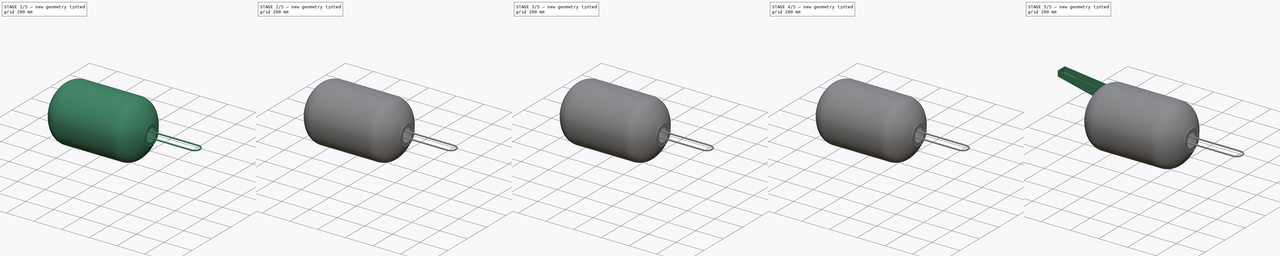
[diagram: build sequence overview — one tinted view per stage of 5, left to right]
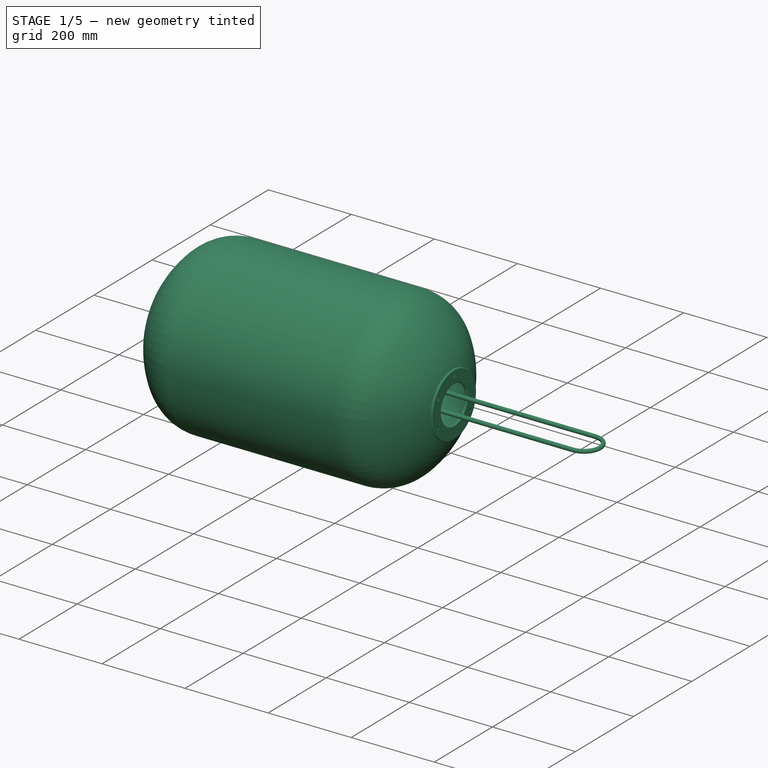
[diagram: stage 1 of 5 — iso view after this stage's code; geometry added in this stage tinted green]
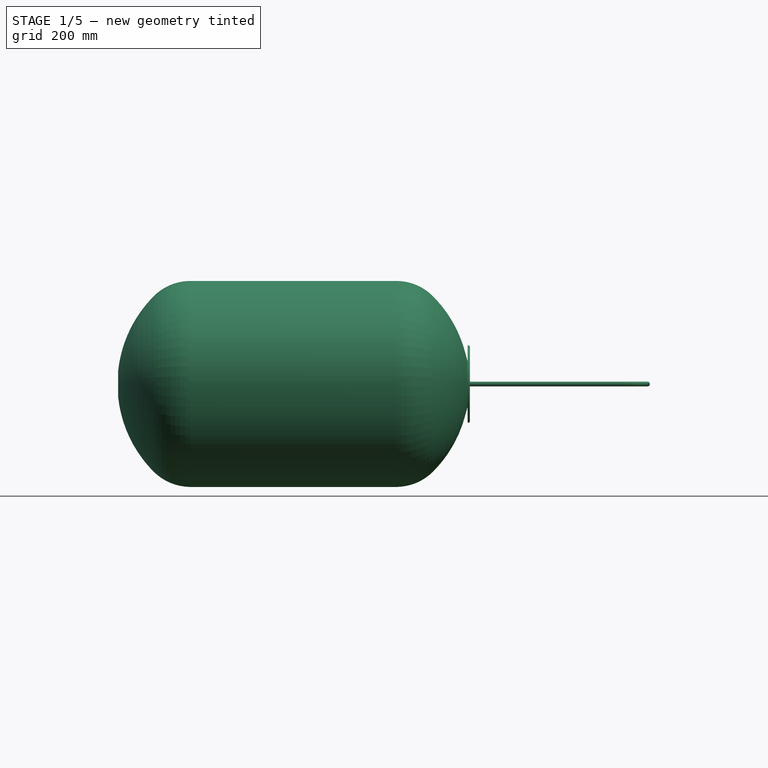
[diagram: stage 1 of 5 — front view after this stage's code; geometry added in this stage tinted green]
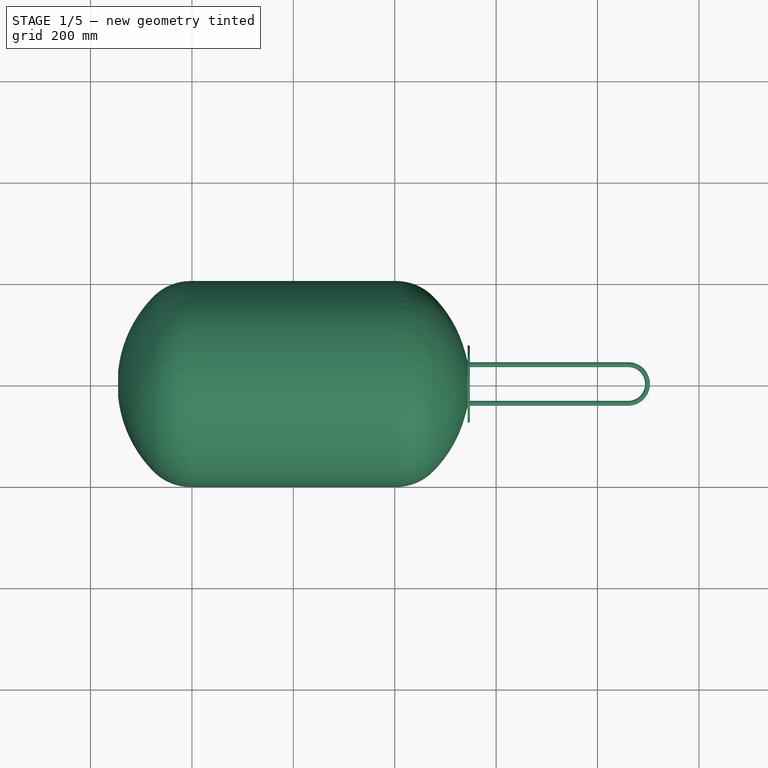
[diagram: stage 1 of 5 — top view after this stage's code; geometry added in this stage tinted green]
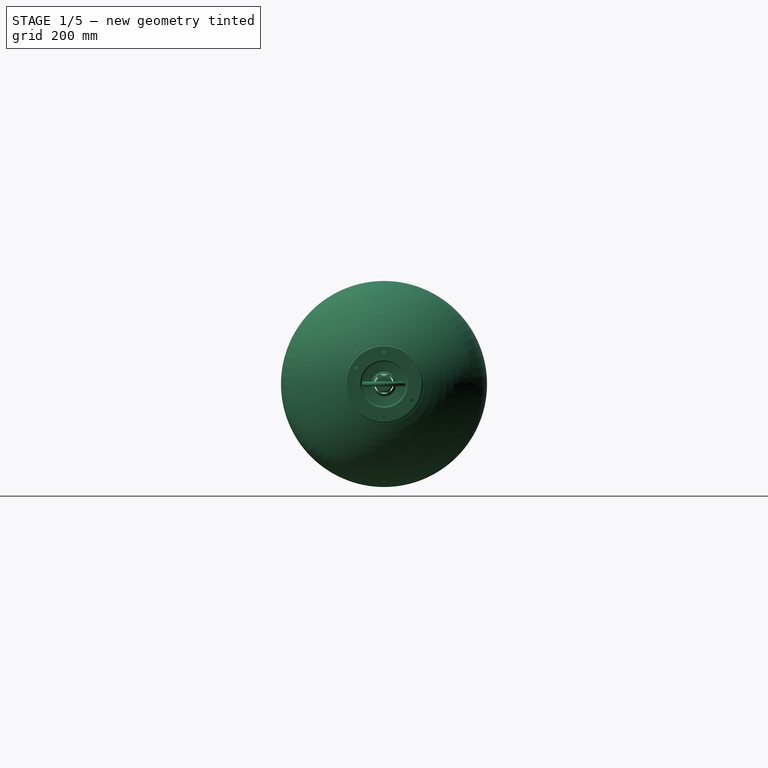
[diagram: stage 1 of 5 — right view after this stage's code; geometry added in this stage tinted green]
FCSTD DOCUMENT  (FreeCAD 0.20RUnknown)
Label: condencer-assy
License: All rights reserved
LicenseURL: http://en.wikipedia.org/wiki/All_rights_reserved
objects: Sketcher::SketchObject×41, PartDesign::Pad×16, PartDesign::Body×11, PartDesign::Pocket×9, PartDesign::Chamfer×9, PartDesign::Fillet×6, PartDesign::Revolution×4, PartDesign::AdditiveHelix×4, PartDesign::AdditiveLoft×3, PartDesign::Groove×3, App::Part×3, PartDesign::PolarPattern×2, PartDesign::AdditivePipe×1
note: 164 computed .brp shape members not serialized (recipe doc carries the construction recipe); baked Part::Feature solids carry a one-line shape summary decoded from their .brp

FEATURE [Sketcher::SketchObject] Sketch012  label="tank-profile"
  FullyConstrained = true
  MapMode = 5
  Placement = pos=(0,0,0) rot=(1,0,0;1.5708rad)
  Support = -> [XZ_Plane003]
  sketch-geometry (42):
    g0: LineSegment StartX=-203.2 StartY=203.2 StartZ=0 EndX=203.2 EndY=203.2 EndZ=0
    g1: ArcOfCircle CenterX=-101.6 CenterY=0 CenterZ=0 NormalX=0 NormalY=0 NormalZ=1 AngleXU=0 Radius=245.284 StartAngle=2.35619 EndAngle=3.03785
    g2: ArcOfCircle CenterX=101.6 CenterY=0 CenterZ=0 NormalX=0 NormalY=0 NormalZ=1 AngleXU=0 Radius=245.284 StartAngle=0.273416 EndAngle=0.785398
    g3: ArcOfCircle CenterX=-203.2 CenterY=101.6 CenterZ=0 NormalX=0 NormalY=0 NormalZ=1 AngleXU=0 Radius=101.6 StartAngle=1.5708 EndAngle=2.35619
    g4: ArcOfCircle CenterX=203.2 CenterY=101.6 CenterZ=0 NormalX=0 NormalY=0 NormalZ=1 AngleXU=0 Radius=101.6 StartAngle=0.785398 EndAngle=1.5708
    g5: GeomPoint X=0 Y=203.2 Z=0
    g6: LineSegment StartX=337.773 StartY=66.2321 StartZ=0 EndX=343.135 EndY=47.1106 EndZ=0
    g7: LineSegment StartX=346.874 StartY=47.625 StartZ=0 EndX=346.874 EndY=73.66 EndZ=0
    g8: LineSegment StartX=345.604 StartY=74.93 StartZ=0 EndX=343.699 EndY=74.93 EndZ=0
    g9: LineSegment StartX=-203.2 StartY=201.93 StartZ=0 EndX=203.2 EndY=201.93 EndZ=0
    g10: ArcOfCircle CenterX=-203.2 CenterY=101.6 CenterZ=0 NormalX=0 NormalY=0 NormalZ=1 AngleXU=0 Radius=100.33 StartAngle=1.5708 EndAngle=2.35619
    g11: ArcOfCircle CenterX=-101.6 CenterY=0 CenterZ=0 NormalX=0 NormalY=0 NormalZ=1 AngleXU=0 Radius=244.014 StartAngle=2.35619 EndAngle=3.03731
    g12: LineSegment StartX=-203.2 StartY=203.2 StartZ=0 EndX=-203.2 EndY=201.93 EndZ=0
    g13: LineSegment StartX=-345.565 StartY=25.4 StartZ=0 EndX=-344.289 EndY=25.4 EndZ=0
    g14: ArcOfCircle CenterX=203.2 CenterY=101.6 CenterZ=0 NormalX=0 NormalY=0 NormalZ=1 AngleXU=0 Radius=100.33 StartAngle=0.785398 EndAngle=1.5708
    g15: LineSegment StartX=203.2 StartY=203.2 StartZ=0 EndX=203.2 EndY=201.93 EndZ=0
    g16: ArcOfCircle CenterX=101.6 CenterY=0 CenterZ=0 NormalX=0 NormalY=0 NormalZ=1 AngleXU=0 Radius=244.014 StartAngle=0.273416 EndAngle=0.785398
    g17: LineSegment StartX=336.55 StartY=65.8891 StartZ=0 EndX=341.912 EndY=46.7677 EndZ=0
    g18: LineSegment StartX=348.144 StartY=47.625 StartZ=0 EndX=348.144 EndY=73.66 EndZ=0
    g19: LineSegment StartX=345.604 StartY=76.2 StartZ=0 EndX=343.699 EndY=76.2 EndZ=0
    g20: LineSegment StartX=343.699 StartY=76.2 StartZ=0 EndX=343.699 EndY=74.93 EndZ=0
    g21: ArcOfCircle CenterX=344.969 CenterY=47.625 CenterZ=0 NormalX=0 NormalY=0 NormalZ=1 AngleXU=0 Radius=1.905 StartAngle=3.41501 EndAngle=6.28319
    g22: ArcOfCircle CenterX=344.969 CenterY=47.625 CenterZ=0 NormalX=0 NormalY=0 NormalZ=1 AngleXU=0 Radius=3.175 StartAngle=3.41501 EndAngle=6.28319
    g23: LineSegment StartX=348.144 StartY=47.625 StartZ=0 EndX=346.874 EndY=47.625 EndZ=0
    g24: LineSegment StartX=337.773 StartY=66.2321 StartZ=0 EndX=336.55 EndY=65.8891 EndZ=0
    g25: ArcOfCircle CenterX=345.604 CenterY=73.66 CenterZ=0 NormalX=0 NormalY=0 NormalZ=1 AngleXU=0 Radius=2.54 StartAngle=-9e-16 EndAngle=1.5708
    g26: GeomPoint X=348.144 Y=76.2 Z=0
    g27: ArcOfCircle CenterX=345.604 CenterY=73.66 CenterZ=0 NormalX=0 NormalY=0 NormalZ=1 AngleXU=0 Radius=1.27 StartAngle=5.2e-15 EndAngle=1.5708
    g28: GeomPoint X=346.874 Y=74.93 Z=0
    g29: LineSegment StartX=341.794 StartY=44.45 StartZ=0 EndX=348.144 EndY=44.45 EndZ=0
    g30: GeomPoint X=344.969 Y=44.45 Z=0
    g31: LineSegment StartX=-336.669 StartY=0 StartZ=0 EndX=-336.669 EndY=12.7 EndZ=0
    g32: LineSegment StartX=-337.945 StartY=0 StartZ=0 EndX=-337.945 EndY=12.7 EndZ=0
    g33: ArcOfCircle CenterX=-341.223 CenterY=24.9479 CenterZ=0 NormalX=0 NormalY=0 NormalZ=1 AngleXU=0 Radius=4.36563 StartAngle=3.03785 EndAngle=3.81319
    g34: ArcOfCircle CenterX=-340.909 CenterY=25.0463 CenterZ=0 NormalX=0 NormalY=0 NormalZ=1 AngleXU=0 Radius=3.39814 StartAngle=3.03731 EndAngle=3.77827
    g35: LineSegment StartX=-337.945 StartY=0 StartZ=0 EndX=-336.669 EndY=0 EndZ=0
    g36: LineSegment StartX=-344.641 StartY=22.2315 StartZ=0 EndX=-343.641 EndY=23.026 EndZ=0
    g37: LineSegment StartX=-344.641 StartY=22.2315 StartZ=0 EndX=-338.635 EndY=14.6756 EndZ=0
    g38: LineSegment StartX=-343.641 StartY=23.026 StartZ=0 EndX=-337.635 EndY=15.4701 EndZ=0
    g39: ArcOfCircle CenterX=-341.12 CenterY=12.7 CenterZ=0 NormalX=0 NormalY=0 NormalZ=1 AngleXU=0 Radius=3.175 StartAngle=0 EndAngle=0.6716
    g40: ArcOfCircle CenterX=-341.12 CenterY=12.7 CenterZ=0 NormalX=0 NormalY=0 NormalZ=1 AngleXU=0 Radius=4.4519 StartAngle=0 EndAngle=0.6716
    g41: LineSegment StartX=-338.635 StartY=14.6756 StartZ=0 EndX=-337.635 EndY=15.4701 EndZ=0
  constraints (105):
    c: Horizontal(g0)
    c: PointOnObject(g1,g-1)
    c: PointOnObject(g2,g-1)
    c: DistanceX(g-1,g2) = 101.6
    c: Tangent(g0,g3) = 1.5708
    c: Tangent(g1,g3) = -1.5708
    c: Tangent(g0,g4) = 1.5708
    c: Tangent(g2,g4) = -1.5708
    c: Equal(g3,g4)
    c: Radius(g3) = 101.6
    c: DistanceX(g1,g-1) = 101.6
    c: Symmetric(g0,g0,g5)
    c: PointOnObject(g5,g-2)
    c: DistanceY(g-1,g5) = 203.2
    c: DistanceX(g0,g0) = 406.4
    c: Vertical(g7)
    c: Distance(g8,g28) = 3.175
    c: Horizontal(g9)
    c: Equal(g0,g9)
    c: Coincident(g10,g3)
    c: Coincident(g10,g9)
    c: Coincident(g11,g1)
    c: Coincident(g12,g0)
    c: Coincident(g12,g9)
    c: Vertical(g12)
    c: DistanceY(g12,g12) = 1.27
    c: Coincident(g13,g1)
    c: Coincident(g13,g11)
    c: Tangent(g11,g10) = -1.5708
    c: Coincident(g14,g4)
    c: Coincident(g14,g9)
    c: Coincident(g15,g0)
    c: Coincident(g15,g9)
    c: Coincident(g16,g2)
    c: Vertical(g18)
    c: Coincident(g20,g19)
    c: Coincident(g20,g8)
    c: Perpendicular(g20,g19)
    c: Parallel(g6,g17)
    c: Parallel(g8,g19)
    c: Tangent(g16,g14) = -1.5708
    c: Tangent(g6,g21) = -1.5708
    c: Tangent(g7,g21) = -1.5708
    c: Tangent(g17,g22) = -1.5708
    c: Tangent(g18,g22) = -1.5708
    c: Coincident(g23,g18)
    c: Coincident(g23,g7)
    c: Horizontal(g23)
    c: Equal(g23,g12)
    c: Coincident(g24,g2)
    c: Coincident(g24,g16)
    c: Radius(g22) = 3.175
    c: PointOnObject(g26,g18)
    c: PointOnObject(g26,g19)
    c: Tangent(g18,g25) = -1.5708
    c: Tangent(g19,g25) = -1.5708
    c: PointOnObject(g28,g7)
    c: PointOnObject(g28,g8)
    c: Tangent(g7,g27) = -1.5708
    c: Tangent(g8,g27) = -1.5708
    c: Radius(g25) = 2.54
    c: Angle(g8,g7) = 1.5708
    c: Coincident(g27,g25)
    c: Perpendicular(g2,g24)
    c: DistanceX(g-1,g16) = 336.55
    c: Coincident(g6,g2)
    c: Perpendicular(g6,g24)
    c: Coincident(g17,g16)
    c: DistanceY(g-1,g7) = 73.66
    c: Horizontal(g29)
    c: Symmetric(g29,g29,g30)
    c: PointOnObject(g30,g22)
    c: Tangent(g22,g29)
    c: Distance(g29) = 6.35
    c: DistanceY(g-1,g30) = 44.45
    c: Horizontal(g13)
    c: PointOnObject(g31,g-1)
    c: Vertical(g31)
    c: PointOnObject(g32,g-1)
    c: Vertical(g32)
    c: Distance(g1,g-1) = 25.4
    c: DistanceY(g32,g32) = 12.7
    c: Tangent(g33,g1) = -1.5708
    c: DistanceX(g1,g32) = 7.62
    c: Coincident(g34,g36) = 1.5708
    c: Tangent(g34,g11) = -1.5708
    c: Coincident(g33,g36) = 1.5708
    c: Coincident(g35,g32)
    c: Coincident(g35,g31)
    c: Equal(g13,g35)
    c: Perpendicular(g33,g36)
    c: Equal(g13,g36)
    c: Coincident(g37,g33)
    c: Coincident(g38,g34)
    c: Parallel(g37,g38)
    c: Tangent(g39,g37) = 1.5708
    c: Tangent(g40,g38) = 1.5708
    c: Tangent(g40,g31) = -1.5708
    c: Tangent(g39,g32) = -1.5708
    c: Coincident(g41,g37)
    c: Coincident(g41,g38)
    c: Perpendicular(g37,g41)
    c: Equal(g41,g36)
    c: Distance(g37) = 9.652
    c: Radius(g39) = 3.175
FEATURE [PartDesign::Revolution] Revolution002
  Angle = 360
  Axis = (1,0,0)
  Base = (0,0,0)
  Placement = pos=(0,0,0) rot=(1,0,0;1.5708rad)
  Profile = -> Sketch012
  ReferenceAxis = -> Sketch012 [H_Axis]
FEATURE [Sketcher::SketchObject] Sketch037
  FullyConstrained = true
  MapMode = 5
  Placement = pos=(348.144,0,0) rot=(0.707107,0,0.707107;3.14159rad)
  Support = -> [Revolution002]
  sketch-geometry (1):
    g0: Circle CenterX=63.5 CenterY=0 CenterZ=0 NormalX=0 NormalY=0 NormalZ=1 AngleXU=0 Radius=3.2385
  constraints (3):
    c: PointOnObject(g0,g-1)
    c: DistanceX(g-1,g0) = 63.5
    c: Diameter(g0) = 6.477
FEATURE [PartDesign::Pocket] Pocket004
  BaseFeature = -> Revolution002
  Direction = (-1,0,2e-16)
  Length = 0
  Length2 = 5
  Placement = pos=(0,0,0) rot=(1,0,0;1.5708rad)
  Profile = -> Sketch037
  ReferenceAxis = -> Sketch037 [N_Axis]
  Type = 3
  UpToFace = -> Revolution002 [Face7]
FEATURE [PartDesign::PolarPattern] PolarPattern004
  Angle = 360
  Axis = -> Sketch037 [N_Axis]
  BaseFeature = -> Pocket004
  Occurrences = 6
  Originals = -> [Pocket004]
  Placement = pos=(0,0,0) rot=(1,0,0;1.5708rad)
FEATURE [PartDesign::Body] Body036  label="leg-003"
  Group = -> [Sketch119,Sketch120,AdditiveLoft003,Sketch121,Pad026,Sketch122,Groove005]
  Origin = -> Origin045
  Placement = pos=(0,0,0) rot=(1,0,0;4.18879rad)
  Tip = -> Groove005
FEATURE [Sketcher::SketchObject] Sketch123
  FullyConstrained = true
  MapMode = 5
  Support = -> [XY_Plane036]
  sketch-geometry (6):
    g0: LineSegment StartX=-0.966036 StartY=14.6098 StartZ=0 EndX=0.966036 EndY=14.5494 EndZ=0
    g1: LineSegment StartX=-0.966036 StartY=14.6098 StartZ=0 EndX=-0.137976 EndY=16.0185 EndZ=0
    g2: LineSegment StartX=-0.137976 StartY=16.0185 StartZ=0 EndX=0.137976 EndY=16.0099 EndZ=0
    g3: LineSegment StartX=0.137976 StartY=16.0099 StartZ=0 EndX=0.966036 EndY=14.5494 EndZ=0
    g4: GeomPoint X=0 Y=14.5796 Z=0
    g5: GeomPoint X=0 Y=16.0142 Z=0
  constraints (14):
    c: Coincident(g1,g0)
    c: Coincident(g2,g1)
    c: Coincident(g3,g2)
    c: Coincident(g3,g0)
    c: Angle(g1,g3) = 1.0472
    c: Parallel(g2,g0)
    c: Symmetric(g0,g0,g4)
    c: Symmetric(g2,g2,g5)
    c: PointOnObject(g5,g-2)
    c: PointOnObject(g4,g-2)
    c: DistanceY(g-1,g4) = 14.5796
    c: DistanceY(g4,g5) = 1.43459
    c: Angle(g0,g-1) = 0.0312396
    c: Distance(g2) = 0.276087
FEATURE [PartDesign::AdditiveHelix] AdditiveHelix
  Angle = -1.7899
  Axis = (1,0,0)
  Base = (0,0,0)
  Growth = -0.0690215
  HasBeenEdited = true
  Height = 25.0063
  LeftHanded = false
  Mode = 0
  Outside = false
  Pitch = 2.2087
  Profile = -> Sketch123
  ReferenceAxis = -> Sketch123 [H_Axis]
  Turns = 11.3217
FEATURE [PartDesign::AdditiveHelix] AdditiveHelix001
  Angle = -80
  Axis = (1,0,0)
  Base = (0,0,0)
  BaseFeature = -> AdditiveHelix
  Growth = -12.5262
  HasBeenEdited = true
  Height = 0.254
  LeftHanded = false
  Mode = 0
  Outside = false
  Pitch = 2.2087
  Profile = -> AdditiveHelix [Face47]
  ReferenceAxis = -> X_Axis036
  Turns = 0.115
FEATURE [Sketcher::SketchObject] Sketch124
  FullyConstrained = true
  MapMode = 5
  Support = -> [XY_Plane036]
  sketch-geometry (7):
    g0: LineSegment StartX=0 StartY=14.5799 StartZ=0 EndX=2.3876 EndY=14.5052 EndZ=0
    g1: LineSegment StartX=0 StartY=14.5799 StartZ=0 EndX=-25.908 EndY=15.3895 EndZ=0
    g2: LineSegment StartX=2.3876 StartY=116.105 StartZ=0 EndX=2.3876 EndY=-87.0948 EndZ=0
    g3: LineSegment StartX=-25.908 StartY=116.989 StartZ=0 EndX=-25.908 EndY=-86.2105 EndZ=0
    g4: LineSegment StartX=2.3876 StartY=14.5052 StartZ=0 EndX=2.3876 EndY=0 EndZ=0
    g5: LineSegment StartX=-25.908 StartY=15.3895 StartZ=0 EndX=-25.908 EndY=0 EndZ=0
    g6: LineSegment StartX=-25.908 StartY=0 StartZ=0 EndX=2.3876 EndY=0 EndZ=0
  constraints (21):
    c: PointOnObject(g0,g-2)
    c: Coincident(g1,g0)
    c: Parallel(g0,g1)
    c: DistanceY(g-1,g0) = 14.5799
    c: Angle(g1,g-1) = 0.0312396
    c: Vertical(g2)
    c: Vertical(g3)
    c: Equal(g2,g3)
    c: Symmetric(g2,g2,g0)
    c: Symmetric(g3,g3,g1)
    c: DistanceY(g2,g2) = 203.2
    c: Distance(g-1,g2) = 2.3876
    c: Distance(g-1,g3) = 25.908
    c: Coincident(g4,g0)
    c: PointOnObject(g4,g-1)
    c: Coincident(g5,g1)
    c: PointOnObject(g5,g-1)
    c: Vertical(g5)
    c: Vertical(g4)
    c: Coincident(g6,g5)
    c: Coincident(g6,g4)
FEATURE [PartDesign::Revolution] Revolution
  Angle = 360
  Axis = (1,0,0)
  Base = (0,0,0)
  BaseFeature = -> AdditiveHelix001
  Profile = -> Sketch124
  ReferenceAxis = -> X_Axis036
FEATURE [Sketcher::SketchObject] Sketch125
  AttachmentOffset = pos=(0,0,-22.86) rot=(0,0,1;0rad)
  FullyConstrained = true
  MapMode = 5
  Placement = pos=(-22.86,5.1e-15,-5.1e-15) rot=(0.57735,0.57735,0.57735;2.0944rad)
  Support = -> [YZ_Plane036]
  sketch-geometry (7):
    g0: LineSegment StartX=20.164 StartY=0 StartZ=0 EndX=10.082 EndY=17.4625 EndZ=0
    g1: LineSegment StartX=10.082 StartY=17.4625 StartZ=0 EndX=-10.082 EndY=17.4625 EndZ=0
    g2: LineSegment StartX=-10.082 StartY=17.4625 StartZ=0 EndX=-20.164 EndY=3.6e-15 EndZ=0
    g3: LineSegment StartX=-20.164 StartY=3.6e-15 StartZ=0 EndX=-10.082 EndY=-17.4625 EndZ=0
    g4: LineSegment StartX=-10.082 StartY=-17.4625 StartZ=0 EndX=10.082 EndY=-17.4625 EndZ=0
    g5: LineSegment StartX=10.082 StartY=-17.4625 StartZ=0 EndX=20.164 EndY=0 EndZ=0
    g6: Circle CenterX=0 CenterY=0 CenterZ=0 NormalX=0 NormalY=0 NormalZ=1 AngleXU=0 Radius=20.164
  constraints (16):
    c: Coincident(g0,g1)
    c: Coincident(g1,g2)
    c: Coincident(g2,g3)
    c: Coincident(g3,g4)
    c: Coincident(g4,g5)
    c: Coincident(g5,g0)
    c: Equal(g0, g1-g5) x5
    c: PointOnObject(g0,g6)
    c: PointOnObject(g1,g6)
    c: PointOnObject(g2,g6)
    c: PointOnObject(g3,g6)
    c: PointOnObject(g4,g6)
    c: PointOnObject(g5,g6)
    c: Coincident(g6,g-1)
    c: PointOnObject(g5,g-1)
    c: Distance(g3,g0) = 34.925
FEATURE [PartDesign::Pad] Pad
  BaseFeature = -> Revolution
  Direction = (1,-2e-16,3e-16)
  Length = 11.43
  Length2 = 10
  Profile = -> Sketch125
  ReferenceAxis = -> Sketch125 [N_Axis]
  Reversed = true
  Type = 0
FEATURE [Sketcher::SketchObject] Sketch126
  FullyConstrained = true
  MapMode = 5
  Placement = pos=(2.3876,0,0) rot=(0.57735,0.57735,0.57735;2.0944rad)
  Support = -> [Pad]
  sketch-geometry (1):
    g0: Circle CenterX=0 CenterY=0 CenterZ=0 NormalX=0 NormalY=0 NormalZ=1 AngleXU=0 Radius=12.7
  constraints (2):
    c: Coincident(g0,g-1)
    c: Diameter(g0) = 25.4
FEATURE [PartDesign::Pocket] Pocket
  BaseFeature = -> Pad
  Direction = (-1,0,0)
  Length = 6.35
  Length2 = 5
  Profile = -> Sketch126
  ReferenceAxis = -> Sketch126 [N_Axis]
  Type = 0
FEATURE [PartDesign::Body] Body028  label="coil-adapter"
  Group = -> [Sketch123,AdditiveHelix,AdditiveHelix001,Sketch124,Revolution,Sketch125,Pad,Sketch126,Pocket,Sketch127,Pocket007,Fillet010,Chamfer001,Chamfer002,Sketch128,Pocket008,Chamfer003,Pad027,Chamfer004,Chamfer005]
  Origin = -> Origin036
  Placement = pos=(-409.575,0,0) rot=(0,0,1;0rad)
  Tip = -> Chamfer005
FEATURE [Sketcher::SketchObject] Sketch129
  AttachmentOffset = pos=(0,0,-355.6) rot=(0,0,1;0rad)
  FullyConstrained = true
  MapMode = 5
  Placement = pos=(-355.6,7.9e-14,-7.9e-14) rot=(0.57735,0.57735,0.57735;2.0944rad)
  Support = -> [YZ_Plane003]
  sketch-geometry (1):
    g0: Circle CenterX=0 CenterY=0 CenterZ=0 NormalX=0 NormalY=0 NormalZ=1 AngleXU=0 Radius=19.05
  constraints (2):
    c: Coincident(g0,g-1)
    c: Diameter(g0) = 38.1
FEATURE [PartDesign::Pocket] Pocket009
  BaseFeature = -> PolarPattern004
  Direction = (-1,2e-16,-3e-16)
  Length = 203.2
  Length2 = 5
  Midplane = true
  Placement = pos=(0,0,0) rot=(1,0,0;1.5708rad)
  Profile = -> Sketch129
  ReferenceAxis = -> Sketch129 [N_Axis]
  Type = 0
FEATURE [Sketcher::SketchObject] Sketch  label="tube-profile"
  AttachmentOffset = pos=(0,0,25.4) rot=(0,0,1;0rad)
  ExternalGeometry = -> [Sketch110]
  FullyConstrained = true
  MapMode = 5
  Placement = pos=(25.4,-5.6e-15,5.6e-15) rot=(0.57735,0.57735,0.57735;2.0944rad)
  Support = -> [YZ_Plane]
  sketch-geometry (2):
    g0: Circle CenterX=6.604 CenterY=-3.34e-14 CenterZ=0 NormalX=0 NormalY=0 NormalZ=1 AngleXU=0 Radius=3.81
    g1: Circle CenterX=6.604 CenterY=-3.34e-14 CenterZ=0 NormalX=0 NormalY=0 NormalZ=1 AngleXU=0 Radius=4.7625
  constraints (4):
    c: Coincident(g1,g0)
    c: Diameter(g1) = 9.525
    c: Diameter(g0) = 7.62
    c: Coincident(g0,g-3)
FEATURE [PartDesign::AdditivePipe] AdditivePipe
  AuxilleryCurvelinear = true
  AuxillerySpineTangent = false
  Binormal = (0,0,0)
  Mode = 0
  Placement = pos=(0,0,0) rot=(0.57735,0.57735,0.57735;2.0944rad)
  Profile = -> Sketch
  Spine = -> Sketch110
  SpineTangent = false
  Transformation = 0
  Transition = 0
FEATURE [PartDesign::Body] Body002  label="seal"
  Group = -> [Sketch008,Pad029,Chamfer008]
  Origin = -> Origin002
  Placement = pos=(0,1.905,0) rot=(0,0,1;0rad)
  Tip = -> Chamfer008
FEATURE [App::Part] Part001  label="bulkhead-fitting-assy"
  Group = -> [Body037,Body001,Body002]
  Origin = -> Origin004
  Placement = pos=(363.538,0,0) rot=(0,0,1;1.5708rad)
FEATURE [App::Part] Part002  label="coil-assy"
  Group = -> [Body011,Body013,Body028,Body]
  Origin = -> Origin048
FEATURE [PartDesign::Fillet] Fillet012
  Base = -> Pocket009 [Edge20]
  BaseFeature = -> Pocket009
  Placement = pos=(0,0,0) rot=(1,0,0;1.5708rad)
  Radius = 0.3175
  SupportTransform = false
  UseAllEdges = false
FEATURE [PartDesign::Body] Body003  label="cylinder"
  Group = -> [Sketch012,Revolution002,Sketch014,Sketch037,Pocket004,PolarPattern004,Sketch129,Pocket009,Fillet012]
  Origin = -> Origin003
  Placement = pos=(0,0,0) rot=(0,1,0;3.14159rad)
  Tip = -> Fillet012
FEATURE [App::Part] Part  label="tank"
  Group = -> [Body003,Body034,Body035,Body036]
  Origin = -> Origin011
  Placement = pos=(25.4,0,0) rot=(0,0,1;0rad)
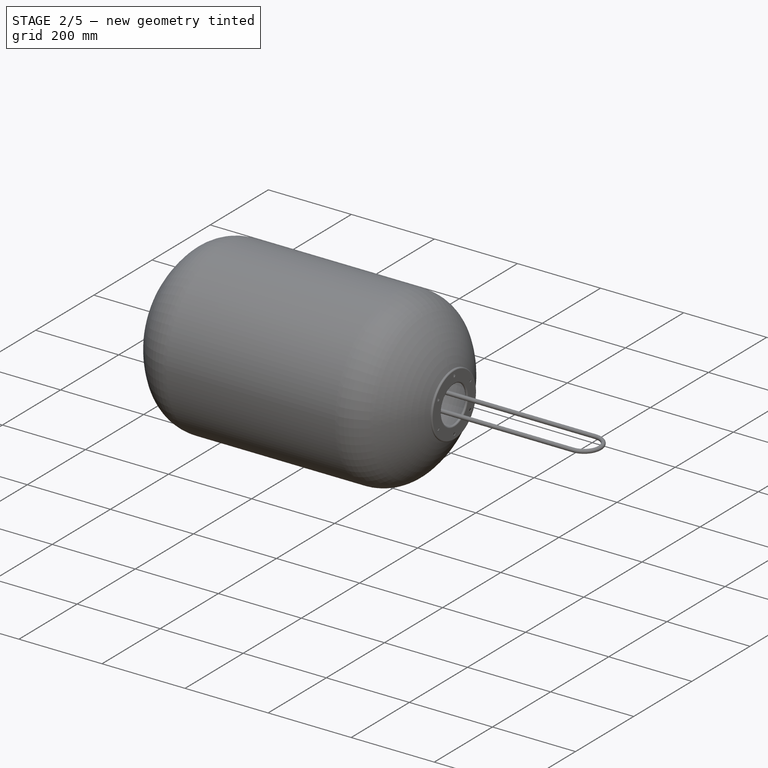
[diagram: stage 2 of 5 — iso view after this stage's code; geometry added in this stage tinted green]
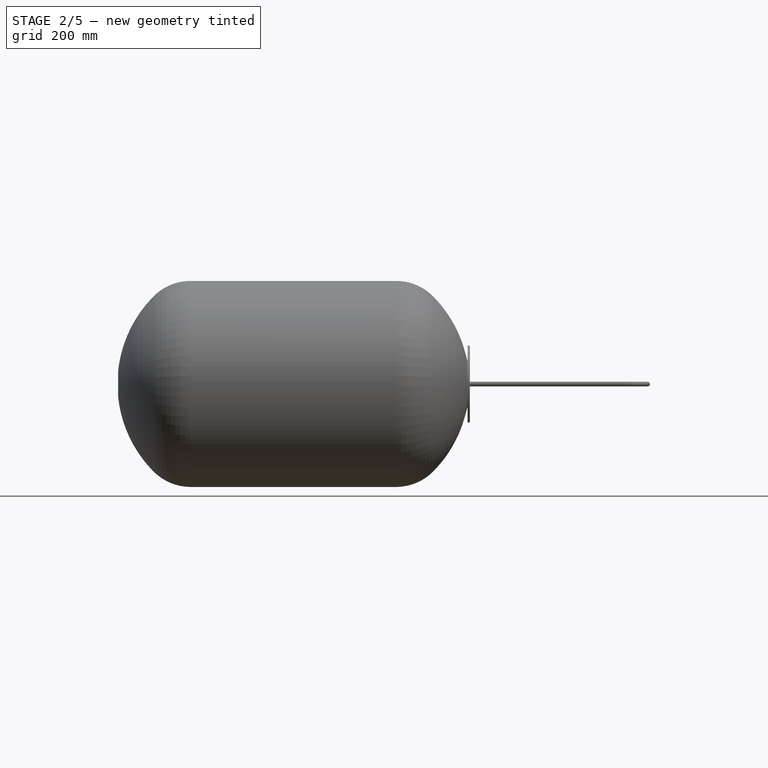
[diagram: stage 2 of 5 — front view after this stage's code; geometry added in this stage tinted green]
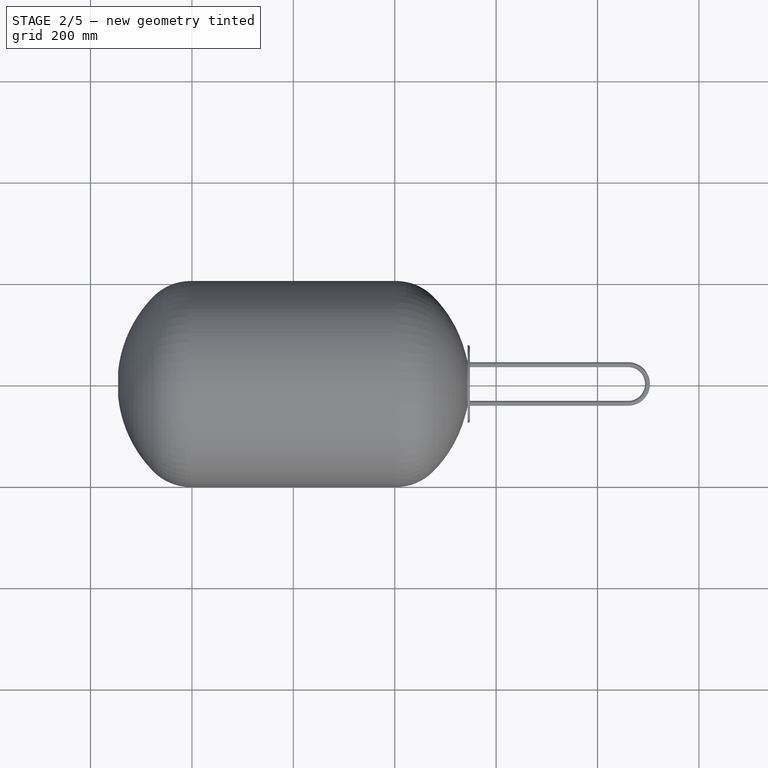
[diagram: stage 2 of 5 — top view after this stage's code; geometry added in this stage tinted green]
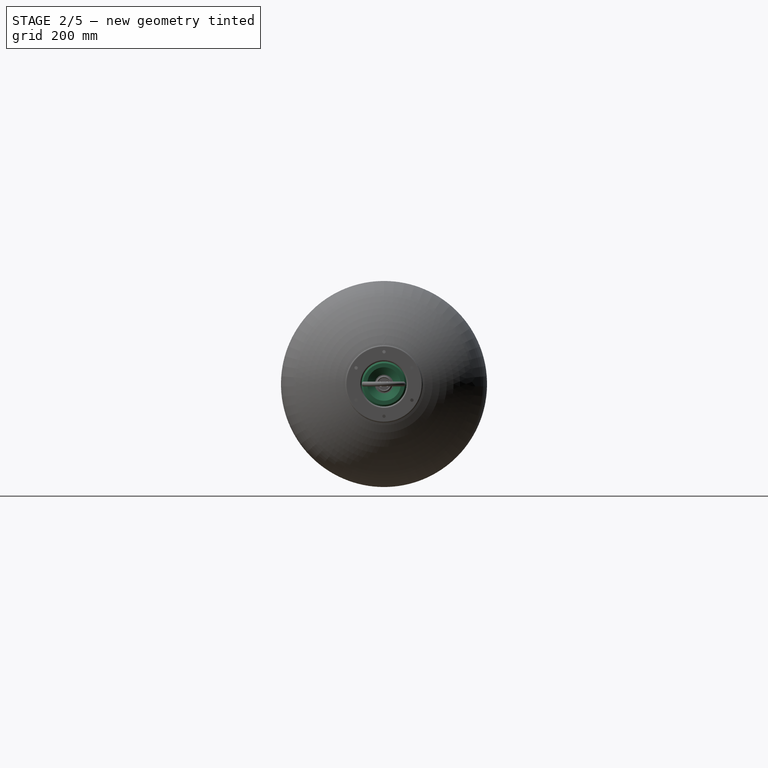
[diagram: stage 2 of 5 — right view after this stage's code; geometry added in this stage tinted green]
FEATURE [Sketcher::SketchObject] Sketch014  label="leg-side-profile"
  ExternalGeometry = -> [Revolution002]
  FullyConstrained = true
  MapMode = 5
  Placement = pos=(0,0,0) rot=(1,0,0;1.5708rad)
  Support = -> [XZ_Plane003]
  sketch-geometry (4):
    g0: LineSegment StartX=275.042 StartY=173.442 StartZ=0 EndX=521.75 EndY=195.026 EndZ=0
    g1: LineSegment StartX=315.824 StartY=119.467 StartZ=0 EndX=521.75 EndY=163.276 EndZ=0
    g2: LineSegment StartX=521.75 StartY=195.026 StartZ=0 EndX=521.75 EndY=163.276 EndZ=0
    g3: ArcOfCircle CenterX=101.6 CenterY=8.14e-14 CenterZ=0 NormalX=0 NormalY=0 NormalZ=1 AngleXU=0 Radius=245.284 StartAngle=0.508716 EndAngle=0.785398
  constraints (12):
    c: Coincident(g0,g-4)
    c: PointOnObject(g1,g-3)
    c: Coincident(g2,g0)
    c: Coincident(g2,g1)
    c: Vertical(g2)
    c: DistanceY(g2,g2) = 31.75
    c: DistanceY(g1,g0) = 53.975
    c: Distance(g0) = 247.65
    c: Angle(g-1,g0) = 0.0872665
    c: Coincident(g3,g0)
    c: Coincident(g3,g1)
    c: Tangent(g3,g-3)
FEATURE [Sketcher::SketchObject] Sketch035
  FullyConstrained = true
  MapMode = 5
  Placement = pos=(0,0,0) rot=(1,0,0;1.5708rad)
  Support = -> [XZ_Plane018]
  sketch-geometry (21):
    g0: LineSegment StartX=0 StartY=78.5749 StartZ=0 EndX=-11.176 EndY=78.5749 EndZ=0
    g1: LineSegment StartX=-11.176 StartY=78.5749 StartZ=0 EndX=-11.176 EndY=53.1749 EndZ=0
    g2: LineSegment StartX=-11.176 StartY=53.1749 StartZ=0 EndX=-4.191 EndY=40.4749 EndZ=0
    g3: LineSegment StartX=-4.191 StartY=40.4749 StartZ=0 EndX=-4.191 EndY=33.4899 EndZ=0
    g4: LineSegment StartX=-4.191 StartY=33.4899 StartZ=0 EndX=-11.176 EndY=18.2499 EndZ=0
    g5: LineSegment StartX=-11.176 StartY=18.2499 StartZ=0 EndX=-11.176 EndY=16.7005 EndZ=0
    g6: LineSegment StartX=-36.576 StartY=16.7005 StartZ=0 EndX=-36.576 EndY=12.7 EndZ=0
    g7: LineSegment StartX=-8.94074 StartY=18.2499 StartZ=0 EndX=-2.159 EndY=33.0464 EndZ=0
    g8: LineSegment StartX=-2.159 StartY=33.0464 StartZ=0 EndX=-2.159 EndY=40.9968 EndZ=0
    g9: LineSegment StartX=-2.159 StartY=40.9968 StartZ=0 EndX=-9.144 EndY=53.6968 EndZ=0
    g10: LineSegment StartX=-9.144 StartY=53.6968 StartZ=0 EndX=-9.144 EndY=76.5429 EndZ=0
    g11: LineSegment StartX=-9.144 StartY=76.5429 StartZ=0 EndX=0 EndY=76.5429 EndZ=0
    g12: LineSegment StartX=-9.144 StartY=76.5429 StartZ=0 EndX=-11.176 EndY=76.5429 EndZ=0
    g13: LineSegment StartX=-4.191 StartY=40.4749 StartZ=0 EndX=-2.159 EndY=40.4749 EndZ=0
    g14: LineSegment StartX=-4.191 StartY=40.4749 StartZ=0 EndX=-2.41053 EndY=41.4542 EndZ=0
    g15: LineSegment StartX=-4.191 StartY=33.4899 StartZ=0 EndX=-2.34378 EndY=32.6433 EndZ=0
    g16: LineSegment StartX=0 StartY=76.5429 StartZ=0 EndX=0 EndY=78.5749 EndZ=0
    g17: LineSegment StartX=-11.176 StartY=16.7005 StartZ=0 EndX=-36.576 EndY=16.7005 EndZ=0
    g18: LineSegment StartX=-11.176 StartY=18.2499 StartZ=0 EndX=-8.94074 EndY=18.2499 EndZ=0
    g19: LineSegment StartX=-36.576 StartY=12.7 StartZ=0 EndX=-8.94074 EndY=12.7 EndZ=0
    g20: LineSegment StartX=-8.94074 StartY=12.7 StartZ=0 EndX=-8.94074 EndY=18.2499 EndZ=0
  constraints (62):
    c: Horizontal(g0)
    c: Coincident(g1,g0)
    c: Vertical(g1)
    c: Coincident(g2,g1)
    c: Coincident(g3,g2)
    c: Vertical(g3)
    c: Coincident(g4,g3)
    c: Coincident(g5,g4)
    c: Vertical(g5)
    c: Vertical(g6)
    c: Coincident(g8,g7)
    c: Vertical(g8)
    c: Coincident(g9,g8)
    c: Coincident(g10,g9)
    c: Vertical(g10)
    c: Coincident(g11,g10)
    c: Horizontal(g11)
    c: DistanceX(g0,g0) = 11.176
    c: Coincident(g12,g10)
    c: PointOnObject(g12,g1)
    c: Horizontal(g12)
    c: Coincident(g13,g2)
    c: PointOnObject(g13,g8)
    c: Horizontal(g13)
    c: Equal(g12,g13)
    c: Parallel(g9,g2)
    c: Parallel(g7,g4)
    c: Coincident(g14,g2)
    c: PointOnObject(g14,g9)
    c: Perpendicular(g2,g14)
    c: Equal(g13,g14)
    c: Coincident(g15,g3)
    c: PointOnObject(g15,g7)
    c: Perpendicular(g15,g4)
    c: Equal(g13,g15)
    c: Distance(g1) = 25.4
    c: DistanceY(g2,g1) = 12.7
    c: DistanceX(g1,g2) = 6.985
    c: DistanceX(g4,g3) = 6.985
    c: DistanceY(g4,g3) = 15.24
    c: Coincident(g16,g11)
    c: Coincident(g16,g0)
    c: Vertical(g16)
    c: Equal(g12,g16)
    c: DistanceY(g16,g16) = 2.032
    c: DistanceY(g3,g2) = 6.985
    c: DistanceX(g11,g-1) = 0
    c: Coincident(g17,g5)
    c: Coincident(g17,g6)
    c: Horizontal(g17)
    c: DistanceY(g-1,g11) = 76.5429
    c: Coincident(g18,g4)
    c: Horizontal(g18)
    c: Coincident(g18,g7)
    c: Coincident(g19,g6)
    c: Horizontal(g19)
    c: Coincident(g20,g19)
    c: Coincident(g20,g7)
    c: Vertical(g20)
    c: DistanceY(g-1,g19) = 12.7
    c: DistanceY(g6,g6) = 4.0005
    c: DistanceX(g17,g17) = 25.4
FEATURE [PartDesign::Revolution] Revolution006
  Angle = 360
  Axis = (1,0,0)
  Base = (0,0,0)
  Placement = pos=(0,0,0) rot=(1,0,0;1.5708rad)
  Profile = -> Sketch035
  ReferenceAxis = -> Sketch035 [H_Axis]
FEATURE [Sketcher::SketchObject] Sketch036
  FullyConstrained = true
  MapMode = 5
  Placement = pos=(-11.176,0,0) rot=(0.707107,0,-0.707107;3.14159rad)
  sketch-geometry (1):
    g0: Circle CenterX=-63.5 CenterY=0 CenterZ=0 NormalX=0 NormalY=0 NormalZ=1 AngleXU=0 Radius=4.445
  constraints (3):
    c: PointOnObject(g0,g-1)
    c: DistanceX(g0,g-1) = 63.5
    c: Diameter(g0) = 8.89
FEATURE [PartDesign::Pocket] Pocket003
  BaseFeature = -> Revolution006
  Direction = (1,0,2e-16)
  Length = 5
  Length2 = 5
  Placement = pos=(0,0,0) rot=(1,0,0;1.5708rad)
  Profile = -> Sketch036
  ReferenceAxis = -> Sketch036 [N_Axis]
  Type = 1
FEATURE [PartDesign::PolarPattern] PolarPattern003
  Angle = 360
  Axis = -> Sketch036 [N_Axis]
  BaseFeature = -> Pocket003
  Occurrences = 6
  Originals = -> [Pocket003]
  Placement = pos=(0,0,0) rot=(1,0,0;1.5708rad)
FEATURE [Sketcher::SketchObject] Sketch127
  FullyConstrained = true
  MapMode = 5
  Placement = pos=(0,0,0) rot=(0.57735,0.57735,0.57735;2.0944rad)
  Support = -> [YZ_Plane036]
  sketch-geometry (3):
    g0: Circle CenterX=0 CenterY=0 CenterZ=0 NormalX=0 NormalY=0 NormalZ=1 AngleXU=0 Radius=6.604
    g1: Circle CenterX=6.604 CenterY=0 CenterZ=0 NormalX=0 NormalY=0 NormalZ=1 AngleXU=0 Radius=4.953
    g2: Circle CenterX=-6.604 CenterY=0 CenterZ=0 NormalX=0 NormalY=0 NormalZ=1 AngleXU=0 Radius=4.953
  constraints (8):
    c: Coincident(g0,g-1)
    c: Diameter(g0) = 13.208
    c: PointOnObject(g1,g-1)
    c: PointOnObject(g2,g-1)
    c: PointOnObject(g1,g0)
    c: PointOnObject(g2,g0)
    c: Equal(g1,g2)
    c: Diameter(g1) = 9.906
FEATURE [PartDesign::Pocket] Pocket007
  BaseFeature = -> Pocket
  Direction = (-1,2e-16,-3e-16)
  Length = 5
  Length2 = 5
  Profile = -> Sketch127
  ReferenceAxis = -> Sketch127 [N_Axis]
  Type = 1
FEATURE [PartDesign::Fillet] Fillet010
  Base = -> Pocket007 [Edge36,Edge32,Edge28,Edge27,Edge30,Edge34]
  BaseFeature = -> Pocket007
  Radius = 2.54
  SupportTransform = false
  UseAllEdges = false
FEATURE [PartDesign::Chamfer] Chamfer001
  Angle = 45
  Base = -> Fillet010 [Face30]
  BaseFeature = -> Fillet010
  ChamferType = 0
  FlipDirection = false
  Size = 0.508
  Size2 = 1
  SupportTransform = false
  UseAllEdges = false
FEATURE [PartDesign::Chamfer] Chamfer002
  Angle = 45
  Base = -> Chamfer001 [Edge6,Edge7,Edge9,Edge11,Edge13,Edge15,Edge17,Edge16,Edge14,Edge12,Edge10,Edge8]
  BaseFeature = -> Chamfer001
  ChamferType = 0
  FlipDirection = false
  Size = 1.27
  Size2 = 1
  SupportTransform = false
  UseAllEdges = false
FEATURE [Sketcher::SketchObject] Sketch128
  FullyConstrained = true
  MapMode = 5
  Placement = pos=(0,0,0) rot=(1,0,0;1.5708rad)
  Support = -> [XZ_Plane036]
  sketch-geometry (1):
    g0: Circle CenterX=-34.798 CenterY=0 CenterZ=0 NormalX=0 NormalY=0 NormalZ=1 AngleXU=0 Radius=1.5875
  constraints (3):
    c: PointOnObject(g0,g-1)
    c: Diameter(g0) = 3.175
    c: DistanceX(g0,g-1) = 34.798
FEATURE [PartDesign::Pocket] Pocket008
  BaseFeature = -> Chamfer002
  Direction = (0,1,2e-16)
  Length = 5
  Length2 = 5
  Midplane = true
  Profile = -> Sketch128
  ReferenceAxis = -> Sketch128 [N_Axis]
  Type = 1
FEATURE [PartDesign::Chamfer] Chamfer003
  Angle = 45
  Base = -> Pocket008 [Edge9,Edge39,Edge8,Edge65,Edge64,Edge10,Edge6,Edge61,Edge7,Edge31]
  BaseFeature = -> Pocket008
  ChamferType = 0
  FlipDirection = false
  Size = 0.635
  Size2 = 1
  SupportTransform = false
  UseAllEdges = false
FEATURE [PartDesign::Pad] Pad027  label="sand-off"
  BaseFeature = -> Chamfer003
  Direction = (-1,2e-16,-2e-16)
  Length = 0.3175
  Length2 = 10
  Profile = -> Chamfer003 [Face1,Face38]
  Type = 0
FEATURE [PartDesign::Chamfer] Chamfer004
  Angle = 45
  Base = -> Pad027 [Face88]
  BaseFeature = -> Pad027
  ChamferType = 0
  FlipDirection = false
  Size = 0.3175
  Size2 = 1
  SupportTransform = false
  UseAllEdges = false
FEATURE [PartDesign::Chamfer] Chamfer005
  Angle = 45
  Base = -> Chamfer004 [Edge195,Edge212,Edge211,Edge210,Edge180,Edge184,Edge190,Edge214,Edge213,Edge208,Edge153,Edge160]
  BaseFeature = -> Chamfer004
  ChamferType = 0
  FlipDirection = false
  Size = 0.508
  Size2 = 1
  SupportTransform = false
  UseAllEdges = false
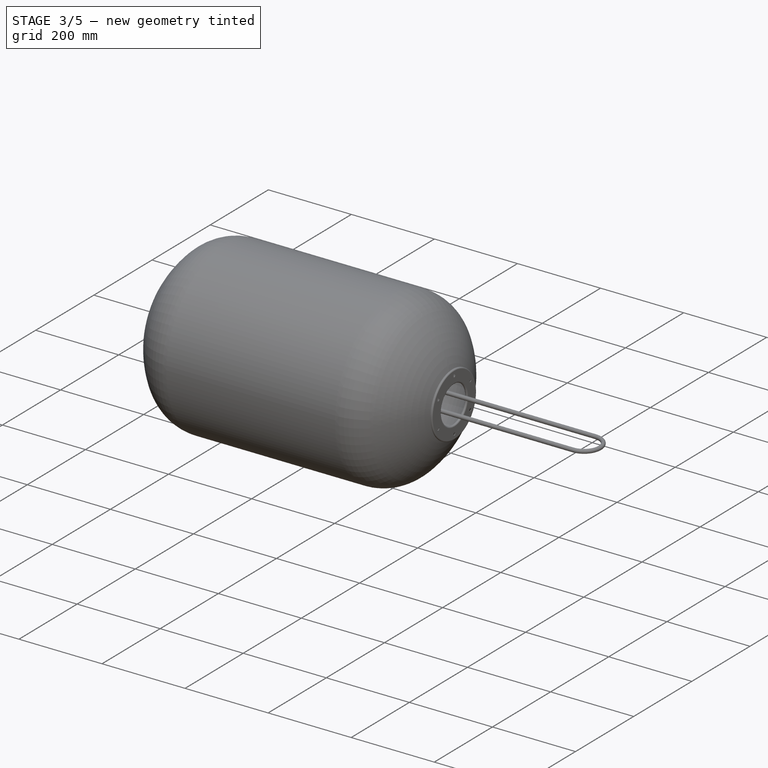
[diagram: stage 3 of 5 — iso view after this stage's code; geometry added in this stage tinted green]
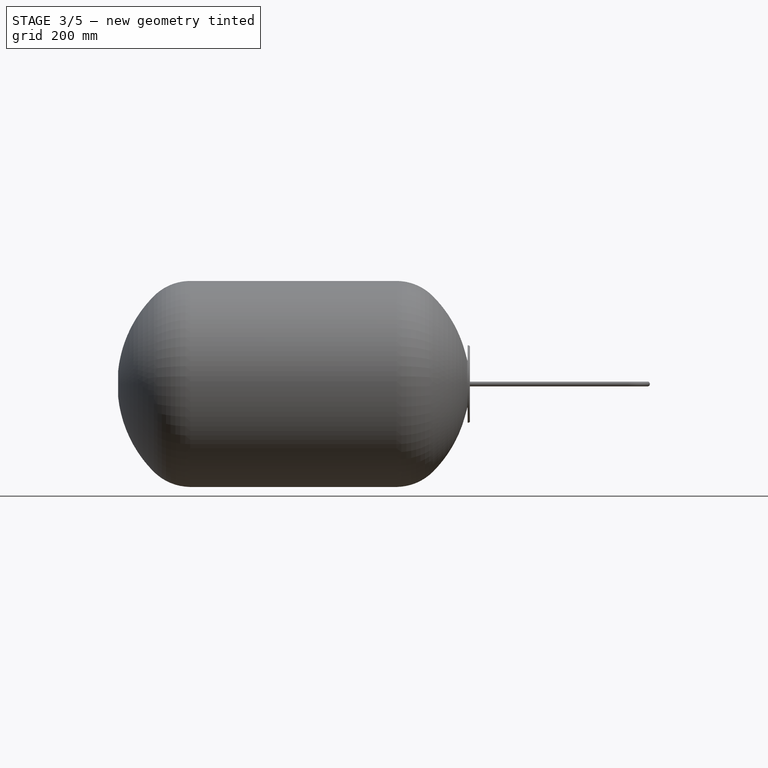
[diagram: stage 3 of 5 — front view after this stage's code; geometry added in this stage tinted green]
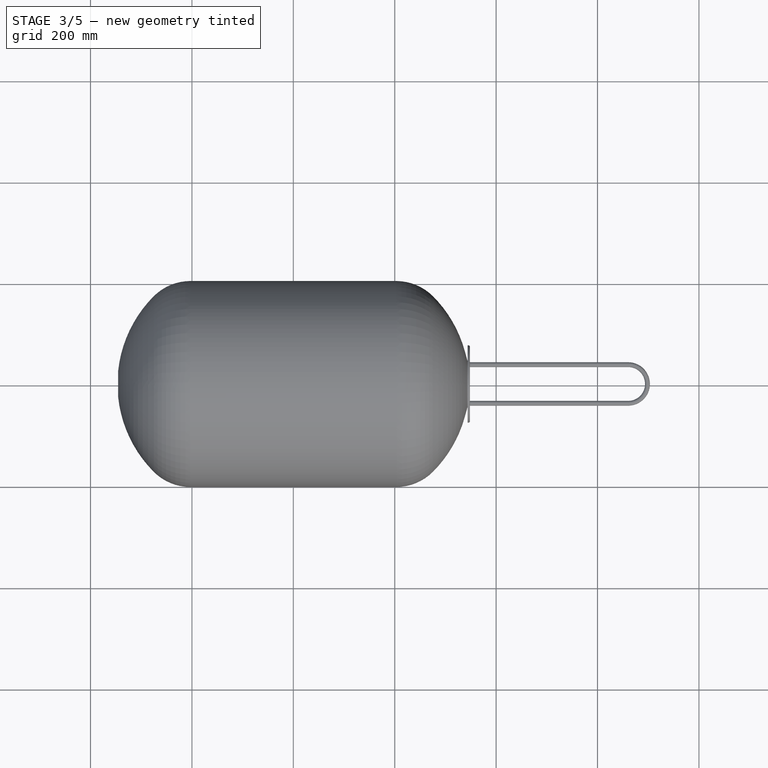
[diagram: stage 3 of 5 — top view after this stage's code; geometry added in this stage tinted green]
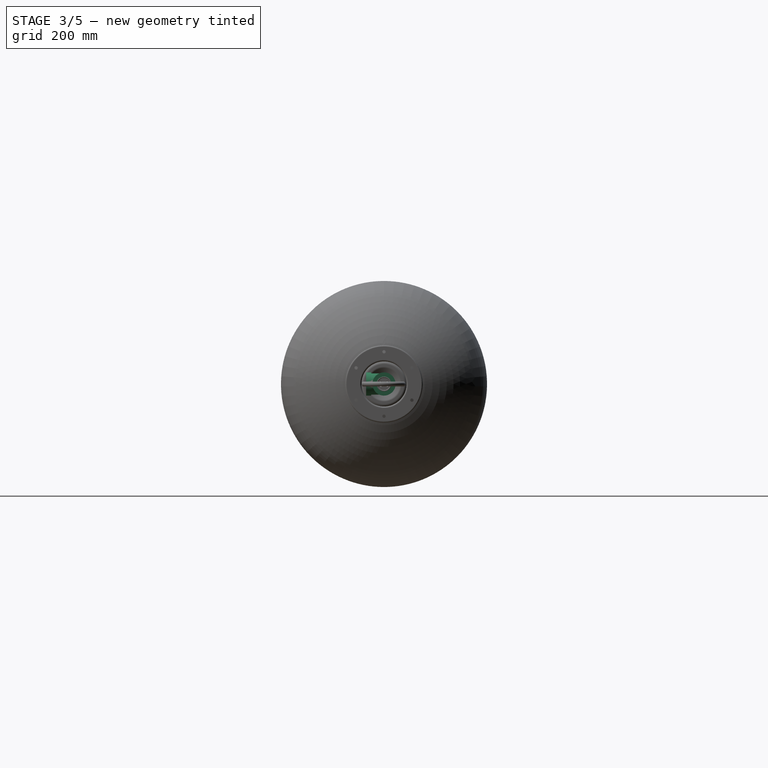
[diagram: stage 3 of 5 — right view after this stage's code; geometry added in this stage tinted green]
FEATURE [Sketcher::SketchObject] Sketch047
  FullyConstrained = true
  MapMode = 5
  Placement = pos=(0,0,0) rot=(0.57735,0.57735,0.57735;2.0944rad)
  Support = -> [YZ_Plane020]
  sketch-geometry (1):
    g0: Circle CenterX=0 CenterY=0 CenterZ=0 NormalX=0 NormalY=0 NormalZ=1 AngleXU=0 Radius=20.955
  constraints (2):
    c: Coincident(g0,g-1)
    c: Diameter(g0) = 41.91
FEATURE [PartDesign::Pad] Pad005
  Direction = (1,-2e-16,3e-16)
  Length = 66.04
  Length2 = 10
  Midplane = true
  Placement = pos=(0,0,0) rot=(0.57735,0.57735,0.57735;2.0944rad)
  Profile = -> Sketch047
  ReferenceAxis = -> Sketch047 [N_Axis]
  Type = 0
FEATURE [Sketcher::SketchObject] Sketch048
  FullyConstrained = true
  MapMode = 5
  Placement = pos=(0,0,0) rot=(1,0,0;1.5708rad)
  Support = -> [XZ_Plane020]
  sketch-geometry (1):
    g0: Circle CenterX=0 CenterY=0 CenterZ=0 NormalX=0 NormalY=0 NormalZ=1 AngleXU=0 Radius=20.955
  constraints (2):
    c: Diameter(g0) = 41.91
    c: Coincident(g0,g-1)
FEATURE [PartDesign::Pad] Pad006
  BaseFeature = -> Pad005
  Direction = (0,-1,-2e-16)
  Length = 25.4
  Length2 = 10
  Placement = pos=(0,0,0) rot=(0.57735,0.57735,0.57735;2.0944rad)
  Profile = -> Sketch048
  ReferenceAxis = -> Sketch048 [N_Axis]
  Type = 0
FEATURE [Sketcher::SketchObject] Sketch049
  FullyConstrained = true
  MapMode = 5
  Placement = pos=(0,0,0) rot=(1,0,0;1.5708rad)
  Support = -> [XZ_Plane020]
  sketch-geometry (1):
    g0: Circle CenterX=0 CenterY=0 CenterZ=0 NormalX=0 NormalY=0 NormalZ=1 AngleXU=0 Radius=19.304
  constraints (2):
    c: Coincident(g0,g-1)
    c: Diameter(g0) = 38.608
FEATURE [Sketcher::SketchObject] Sketch050
  FullyConstrained = true
  MapMode = 5
  Placement = pos=(0,0,0) rot=(0.57735,0.57735,0.57735;2.0944rad)
  Support = -> [YZ_Plane020]
  sketch-geometry (1):
    g0: Circle CenterX=0 CenterY=0 CenterZ=0 NormalX=0 NormalY=0 NormalZ=1 AngleXU=0 Radius=19.304
  constraints (2):
    c: Coincident(g0,g-1)
    c: Diameter(g0) = 38.608
FEATURE [PartDesign::Pocket] Pocket005
  BaseFeature = -> Pad006
  Direction = (-1,2e-16,-3e-16)
  Length = 5
  Length2 = 5
  Midplane = true
  Placement = pos=(0,0,0) rot=(0.57735,0.57735,0.57735;2.0944rad)
  Profile = -> Sketch050
  ReferenceAxis = -> Sketch050 [N_Axis]
  Type = 1
FEATURE [PartDesign::Pocket] Pocket006
  BaseFeature = -> Pocket005
  Direction = (0,1,2e-16)
  Length = 5
  Length2 = 5
  Placement = pos=(0,0,0) rot=(0.57735,0.57735,0.57735;2.0944rad)
  Profile = -> Sketch049
  ReferenceAxis = -> Sketch049 [N_Axis]
  Reversed = true
  Type = 1
FEATURE [Sketcher::SketchObject] Sketch051
  FullyConstrained = true
  MapMode = 5
  Placement = pos=(0,-25.4,-5.6e-15) rot=(0.57735,0.57735,-0.57735;2.0944rad)
  Support = -> [Pocket006]
  sketch-geometry (2):
    g0: Circle CenterX=0 CenterY=0 CenterZ=0 NormalX=0 NormalY=0 NormalZ=1 AngleXU=0 Radius=22.86
    g1: Circle CenterX=0 CenterY=0 CenterZ=0 NormalX=0 NormalY=0 NormalZ=1 AngleXU=0 Radius=14.605
  constraints (4):
    c: Coincident(g0,g-1)
    c: Coincident(g1,g0)
    c: Diameter(g0) = 45.72
    c: Diameter(g1) = 29.21
FEATURE [PartDesign::Pad] Pad007
  BaseFeature = -> Pocket006
  Direction = (1e-16,-1,9e-16)
  Length = 9.906
  Length2 = 10
  Placement = pos=(0,0,0) rot=(0.57735,0.57735,0.57735;2.0944rad)
  Profile = -> Sketch051
  ReferenceAxis = -> Sketch051 [N_Axis]
  Type = 0
FEATURE [Sketcher::SketchObject] Sketch052
  FullyConstrained = true
  MapMode = 5
  Placement = pos=(-33.02,7.3e-15,-7.3e-15) rot=(0.57735,0.57735,-0.57735;4.18879rad)
  Support = -> [Pad007]
  sketch-geometry (2):
    g0: Circle CenterX=0 CenterY=0 CenterZ=0 NormalX=0 NormalY=0 NormalZ=1 AngleXU=0 Radius=22.86
    g1: Circle CenterX=0 CenterY=0 CenterZ=0 NormalX=0 NormalY=0 NormalZ=1 AngleXU=0 Radius=14.605
  constraints (4):
    c: Coincident(g0,g-1)
    c: Coincident(g1,g0)
    c: Diameter(g0) = 45.72
    c: Diameter(g1) = 29.21
FEATURE [PartDesign::Pad] Pad008
  BaseFeature = -> Pad007
  Direction = (-1,1.3e-15,-8e-16)
  Length = 9.906
  Length2 = 10
  Placement = pos=(0,0,0) rot=(0.57735,0.57735,0.57735;2.0944rad)
  Profile = -> Sketch052
  ReferenceAxis = -> Sketch052 [N_Axis]
  Type = 0
FEATURE [Sketcher::SketchObject] Sketch053
  FullyConstrained = true
  MapMode = 5
  Placement = pos=(33.02,-7.3e-15,7.3e-15) rot=(0.57735,0.57735,0.57735;2.0944rad)
  Support = -> [Pad008]
  sketch-geometry (2):
    g0: Circle CenterX=0 CenterY=0 CenterZ=0 NormalX=0 NormalY=0 NormalZ=1 AngleXU=0 Radius=22.86
    g1: Circle CenterX=0 CenterY=0 CenterZ=0 NormalX=0 NormalY=0 NormalZ=1 AngleXU=0 Radius=14.605
  constraints (4):
    c: Coincident(g0,g-1)
    c: Coincident(g1,g0)
    c: Diameter(g0) = 45.72
    c: Diameter(g1) = 29.21
FEATURE [PartDesign::Pad] Pad009
  BaseFeature = -> Pad008
  Direction = (1,-1.8e-15,1e-15)
  Length = 9.906
  Length2 = 10
  Placement = pos=(0,0,0) rot=(0.57735,0.57735,0.57735;2.0944rad)
  Profile = -> Sketch053
  ReferenceAxis = -> Sketch053 [N_Axis]
  Type = 0
FEATURE [PartDesign::Body] Body013  label="t-fitting"
  Group = -> [Sketch047,Pad005,Sketch048,Pad006,Sketch049,Sketch050,Pocket005,Pocket006,Sketch051,Pad007,Sketch052,Pad008,Sketch053,Pad009]
  Origin = -> Origin020
  Placement = pos=(-381,0,0) rot=(0,0,1;0rad)
  Tip = -> Pad009
FEATURE [PartDesign::Chamfer] Chamfer
  Angle = 45
  Base = -> PolarPattern003 [Edge38]
  BaseFeature = -> PolarPattern003
  ChamferType = 0
  FlipDirection = false
  Placement = pos=(0,0,0) rot=(1,0,0;1.5708rad)
  Size = 2.032
  Size2 = 1
  SupportTransform = false
  UseAllEdges = false
FEATURE [PartDesign::Fillet] Fillet
  Base = -> Chamfer [Edge18]
  BaseFeature = -> Chamfer
  Placement = pos=(0,0,0) rot=(1,0,0;1.5708rad)
  Radius = 3.175
  SupportTransform = false
  UseAllEdges = false
FEATURE [PartDesign::Fillet] Fillet001
  Base = -> Fillet [Edge27]
  BaseFeature = -> Fillet
  Placement = pos=(0,0,0) rot=(1,0,0;1.5708rad)
  Radius = 0.79375
  SupportTransform = false
  UseAllEdges = false
FEATURE [PartDesign::Fillet] Fillet002
  Base = -> Fillet001 [Edge29,Edge17]
  BaseFeature = -> Fillet001
  Placement = pos=(0,0,0) rot=(1,0,0;1.5708rad)
  Radius = 8.001
  SupportTransform = false
  UseAllEdges = false
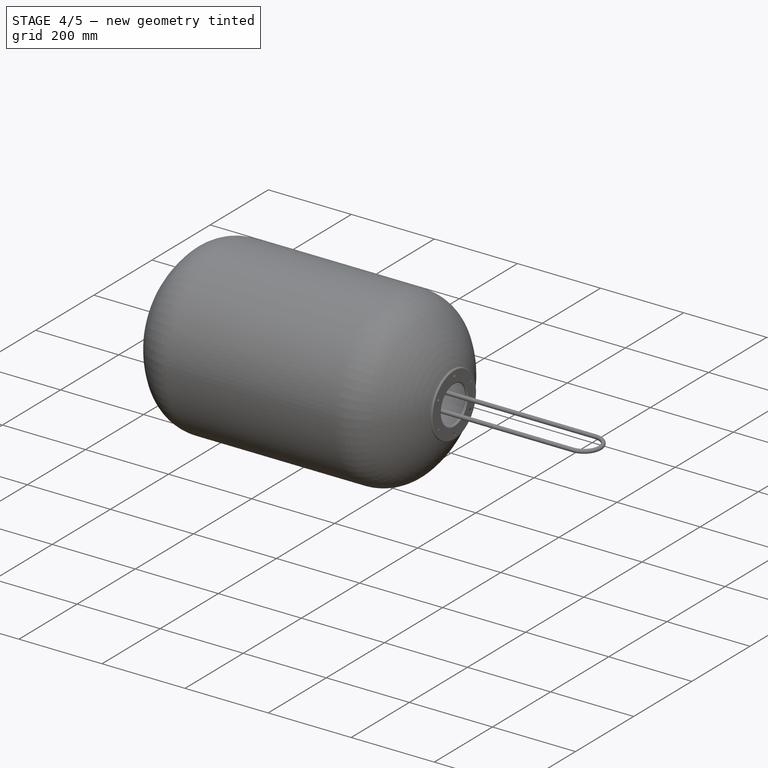
[diagram: stage 4 of 5 — iso view after this stage's code; geometry added in this stage tinted green]
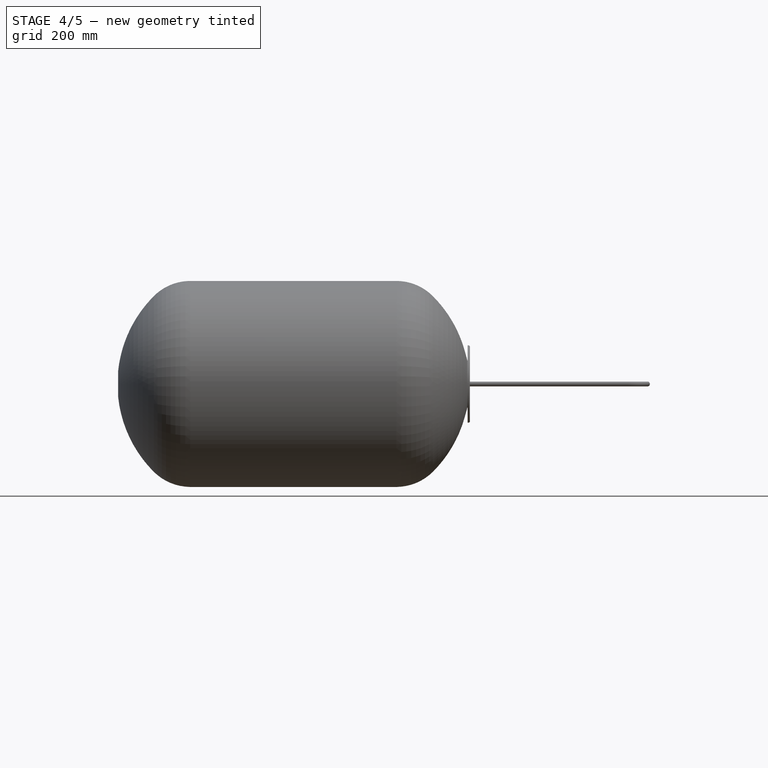
[diagram: stage 4 of 5 — front view after this stage's code; geometry added in this stage tinted green]
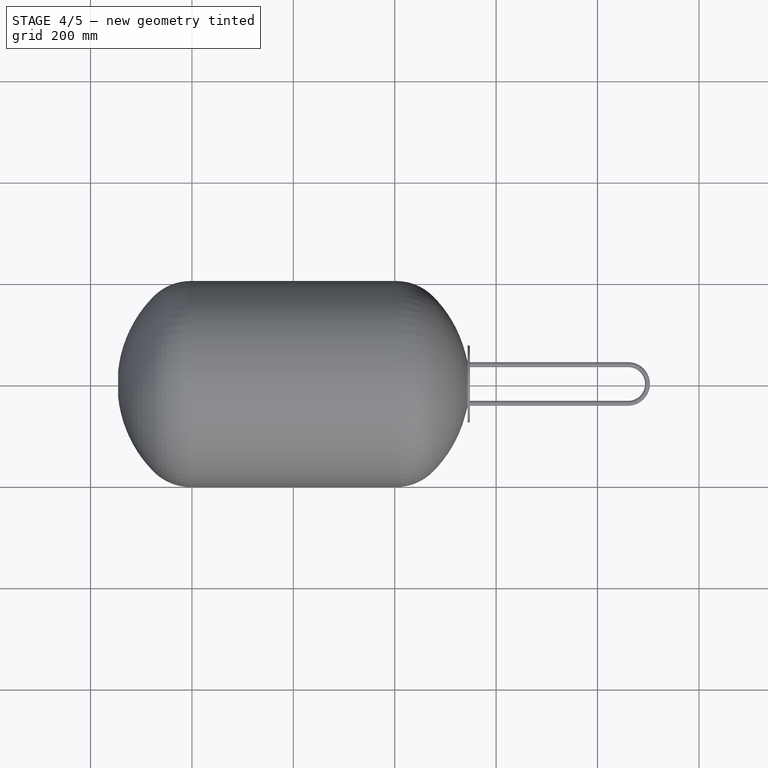
[diagram: stage 4 of 5 — top view after this stage's code; geometry added in this stage tinted green]
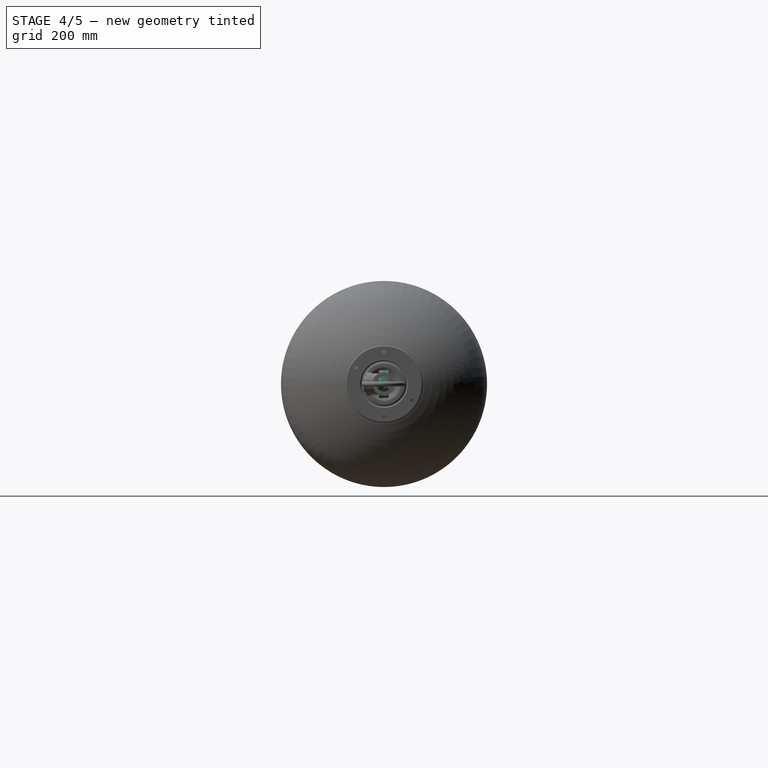
[diagram: stage 4 of 5 — right view after this stage's code; geometry added in this stage tinted green]
FEATURE [PartDesign::Body] Body  label="coil"
  Group = -> [Sketch110,Sketch,AdditivePipe]
  Origin = -> Origin
  Placement = pos=(-514.35,0,0) rot=(0,0,1;0rad)
  Tip = -> AdditivePipe
FEATURE [Sketcher::SketchObject] Sketch130
  FullyConstrained = true
  MapMode = 5
  Placement = pos=(0,0,0) rot=(1,0,0;1.5708rad)
  Support = -> [XZ_Plane046]
  sketch-geometry (2):
    g0: Circle CenterX=0 CenterY=0 CenterZ=0 NormalX=0 NormalY=0 NormalZ=1 AngleXU=0 Radius=16.1925
    g1: Circle CenterX=0 CenterY=0 CenterZ=0 NormalX=0 NormalY=0 NormalZ=1 AngleXU=0 Radius=13.335
  constraints (4):
    c: Coincident(g0,g-1)
    c: Coincident(g1,g0)
    c: Diameter(g1) = 26.67
    c: Diameter(g0) = 32.385
FEATURE [PartDesign::Pad] Pad028
  Direction = (0,-1,2e-16)
  Length = 39.37
  Length2 = 10
  Placement = pos=(0,0,0) rot=(1,0,0;1.5708rad)
  Profile = -> Sketch130
  ReferenceAxis = -> Sketch130 [N_Axis]
  Type = 0
FEATURE [Sketcher::SketchObject] Sketch001
  FullyConstrained = true
  MapMode = 5
  Placement = pos=(0,0,0) rot=(-1,0,0;1.5708rad)
  Support = -> [Pad028]
  sketch-geometry (14):
    g0: Circle CenterX=0 CenterY=0 CenterZ=0 NormalX=0 NormalY=0 NormalZ=1 AngleXU=0 Radius=27.305
    g1: Circle CenterX=0 CenterY=0 CenterZ=0 NormalX=0 NormalY=0 NormalZ=1 AngleXU=0 Radius=13.335
    g2: LineSegment StartX=27.0807 StartY=3.4925 StartZ=0 EndX=27.0807 EndY=-3.4925 EndZ=0
    g3: LineSegment StartX=27.0807 StartY=-3.4925 StartZ=0 EndX=32.4782 EndY=-3.4925 EndZ=0
    g4: LineSegment StartX=32.4782 StartY=-3.4925 StartZ=0 EndX=32.4782 EndY=3.4925 EndZ=0
    g5: LineSegment StartX=32.4782 StartY=3.4925 StartZ=0 EndX=27.0807 EndY=3.4925 EndZ=0
    g6: GeomPoint X=29.7795 Y=-8e-16 Z=0
    g7: LineSegment StartX=-27.0807 StartY=3.4925 StartZ=0 EndX=-27.0807 EndY=-3.4925 EndZ=0
    g8: LineSegment StartX=-27.0807 StartY=-3.4925 StartZ=0 EndX=-32.4782 EndY=-3.4925 EndZ=0
    g9: LineSegment StartX=-32.4782 StartY=-3.4925 StartZ=0 EndX=-32.4782 EndY=3.4925 EndZ=0
    g10: LineSegment StartX=-32.4782 StartY=3.4925 StartZ=0 EndX=-27.0807 EndY=3.4925 EndZ=0
    g11: GeomPoint X=-29.7795 Y=-4.7e-15 Z=0
    g12: ArcOfCircle CenterX=0 CenterY=0 CenterZ=0 NormalX=0 NormalY=0 NormalZ=1 AngleXU=0 Radius=27.305 StartAngle=0.128258 EndAngle=3.01333
    g13: ArcOfCircle CenterX=0 CenterY=0 CenterZ=0 NormalX=0 NormalY=0 NormalZ=1 AngleXU=0 Radius=27.305 StartAngle=3.26985 EndAngle=6.15493
  constraints (34):
    c: Coincident(g0,g-1)
    c: Diameter(g0) = 54.61
    c: Coincident(g1,g0)
    c: Diameter(g1) = 26.67
    c: Coincident(g2,g3)
    c: Coincident(g3,g4)
    c: Coincident(g4,g5)
    c: Coincident(g5,g2)
    c: Horizontal(g3)
    c: Horizontal(g5)
    c: Vertical(g2)
    c: Vertical(g4)
    c: Symmetric(g3,g2,g6)
    c: Coincident(g7,g8)
    c: Coincident(g8,g9)
    c: Coincident(g9,g10)
    c: Coincident(g10,g7)
    c: Horizontal(g8)
    c: Horizontal(g10)
    c: Vertical(g7)
    c: Vertical(g9)
    c: Symmetric(g8,g7,g11)
    c: Equal(g3,g8)
    c: Equal(g4,g7)
    c: Coincident(g12,g1)
    c: Coincident(g13,g1)
    c: Equal(g0,g12)
    c: Equal(g0,g13)
    c: Coincident(g12,g10)
    c: Coincident(g8,g13)
    c: Coincident(g5,g12)
    c: Coincident(g3,g13)
    c: DistanceY(g9,g9) = 6.985
    c: DistanceX(g8,g8) = 5.3975
FEATURE [PartDesign::Pad] Pad001
  BaseFeature = -> Pad028
  Direction = (0,1,-2e-16)
  Length = 8.89
  Length2 = 10
  Placement = pos=(0,0,0) rot=(1,0,0;1.5708rad)
  Profile = -> Sketch001
  ReferenceAxis = -> Sketch001 [N_Axis]
  Type = 0
FEATURE [Sketcher::SketchObject] Sketch002
  FullyConstrained = true
  MapMode = 5
  Placement = pos=(0,0,0) rot=(1,0,0;1.5708rad)
  Support = -> [Pad001]
  sketch-geometry (14):
    g0: Circle CenterX=0 CenterY=0 CenterZ=0 NormalX=0 NormalY=0 NormalZ=1 AngleXU=0 Radius=17.4625
    g1: Circle CenterX=0 CenterY=0 CenterZ=0 NormalX=0 NormalY=0 NormalZ=1 AngleXU=0 Radius=26.3525
    g2: LineSegment StartX=26.12 StartY=3.4925 StartZ=0 EndX=26.12 EndY=-3.4925 EndZ=0
    g3: LineSegment StartX=26.12 StartY=-3.4925 StartZ=0 EndX=38.82 EndY=-3.4925 EndZ=0
    g4: LineSegment StartX=38.82 StartY=-3.4925 StartZ=0 EndX=38.82 EndY=3.4925 EndZ=0
    g5: LineSegment StartX=38.82 StartY=3.4925 StartZ=0 EndX=26.12 EndY=3.4925 EndZ=0
    g6: GeomPoint X=32.47 Y=0 Z=0
    g7: LineSegment StartX=-26.12 StartY=3.4925 StartZ=0 EndX=-26.12 EndY=-3.4925 EndZ=0
    g8: LineSegment StartX=-26.12 StartY=-3.4925 StartZ=0 EndX=-38.82 EndY=-3.4925 EndZ=0
    g9: LineSegment StartX=-38.82 StartY=-3.4925 StartZ=0 EndX=-38.82 EndY=3.4925 EndZ=0
    g10: LineSegment StartX=-38.82 StartY=3.4925 StartZ=0 EndX=-26.12 EndY=3.4925 EndZ=0
    g11: GeomPoint X=-32.47 Y=-7.7e-15 Z=0
    g12: ArcOfCircle CenterX=0 CenterY=0 CenterZ=0 NormalX=0 NormalY=0 NormalZ=1 AngleXU=0 Radius=26.3525 StartAngle=0.132921 EndAngle=3.00867
    g13: ArcOfCircle CenterX=0 CenterY=0 CenterZ=0 NormalX=0 NormalY=0 NormalZ=1 AngleXU=0 Radius=26.3525 StartAngle=3.27451 EndAngle=6.15026
  constraints (34):
    c: Coincident(g0,g-1)
    c: Coincident(g1,g0)
    c: Diameter(g0) = 34.925
    c: Diameter(g1) = 52.705
    c: Coincident(g2,g3)
    c: Coincident(g3,g4)
    c: Coincident(g4,g5)
    c: Coincident(g5,g2)
    c: Horizontal(g3)
    c: Horizontal(g5)
    c: Vertical(g2)
    c: Vertical(g4)
    c: Symmetric(g3,g2,g6)
    c: PointOnObject(g6,g-1)
    c: Coincident(g7,g8)
    c: Coincident(g8,g9)
    c: Coincident(g9,g10)
    c: Coincident(g10,g7)
    c: Horizontal(g8)
    c: Horizontal(g10)
    c: Vertical(g7)
    c: Vertical(g9)
    c: Symmetric(g8,g7,g11)
    c: Equal(g3,g8)
    c: Equal(g7,g4)
    c: Coincident(g12,g0)
    c: Coincident(g12,g7)
    c: Coincident(g12,g2)
    c: Coincident(g13,g0)
    c: Coincident(g13,g2)
    c: Coincident(g13,g7)
    c: Equal(g1,g12)
    c: DistanceX(g3,g3) = 12.7
    c: DistanceY(g4,g4) = 6.985
FEATURE [PartDesign::Pocket] Pocket010
  BaseFeature = -> Pad001
  Direction = (0,1,-2e-16)
  Length = 1.905
  Length2 = 5
  Placement = pos=(0,0,0) rot=(1,0,0;1.5708rad)
  Profile = -> Sketch002
  ReferenceAxis = -> Sketch002 [N_Axis]
  Type = 0
FEATURE [PartDesign::Pad] Pad002
  BaseFeature = -> Pocket010
  Direction = (0,-1,2e-16)
  Length = 3.175
  Length2 = 10
  Placement = pos=(0,0,0) rot=(1,0,0;1.5708rad)
  Profile = -> Pocket010 [Face2]
  Type = 0
FEATURE [Sketcher::SketchObject] Sketch003
  AttachmentOffset = pos=(-36.195,0,0) rot=(0,0,1;0rad)
  FullyConstrained = true
  MapMode = 5
  Placement = pos=(-8e-15,-36.195,8e-15) rot=(0.57735,0.57735,0.57735;2.0944rad)
  Support = -> [YZ_Plane046]
  sketch-geometry (5):
    g0: LineSegment StartX=-0.922699 StartY=16.19 StartZ=0 EndX=0.142957 EndY=17.46 EndZ=0
    g1: LineSegment StartX=0.142957 StartY=17.46 StartZ=0 EndX=0.460457 EndY=17.46 EndZ=0
    g2: LineSegment StartX=0.460457 StartY=17.46 StartZ=0 EndX=0.922699 EndY=16.19 EndZ=0
    g3: LineSegment StartX=-0.922699 StartY=16.19 StartZ=0 EndX=0.922699 EndY=16.19 EndZ=0
    g4: GeomPoint X=0 Y=16.19 Z=0
  constraints (13):
    c: Coincident(g1,g0)
    c: Horizontal(g1)
    c: Coincident(g2,g1)
    c: Coincident(g3,g0)
    c: Coincident(g3,g2)
    c: Horizontal(g3)
    c: DistanceY(g0,g0) = 1.27
    c: DistanceX(g1,g1) = 0.3175
    c: Angle(g3,g0) = 0.872665
    c: Angle(g2,g3) = 1.22173
    c: Symmetric(g3,g3,g4)
    c: PointOnObject(g4,g-2)
    c: DistanceY(g-1,g4) = 16.19
FEATURE [PartDesign::AdditiveHelix] AdditiveHelix002
  Angle = 0
  Axis = (3e-16,1,-2e-16)
  Base = (-8e-15,-36.195,8e-15)
  BaseFeature = -> Pad002
  Growth = 0
  HasBeenEdited = true
  Height = 34.29
  LeftHanded = true
  Mode = 0
  Outside = false
  Pitch = 2.54
  Placement = pos=(0,0,0) rot=(1,0,0;1.5708rad)
  Profile = -> Sketch003
  ReferenceAxis = -> Sketch003 [H_Axis]
  Turns = 13.5
FEATURE [PartDesign::AdditiveHelix] AdditiveHelix003
  Angle = -80
  Axis = (1e-16,1,-1e-16)
  Base = (0,0,0)
  BaseFeature = -> AdditiveHelix002
  Growth = -14.4051
  HasBeenEdited = true
  Height = 0.3175
  LeftHanded = true
  Mode = 0
  Outside = false
  Pitch = 2.54
  Placement = pos=(0,0,0) rot=(1,0,0;1.5708rad)
  Profile = -> AdditiveHelix002 [Face76]
  ReferenceAxis = -> Y_Axis046
  Reversed = true
  Turns = 0.125
FEATURE [PartDesign::Chamfer] Chamfer009
  Angle = 45
  Base = -> AdditiveHelix003 [Face48,Face52,Edge78,Edge114,Edge116,Edge130,Edge111,Edge131,Edge110,Edge113,Edge100,Edge101,Edge99,Edge98,Edge72,Edge97]
  BaseFeature = -> AdditiveHelix003
  ChamferType = 0
  FlipDirection = false
  Placement = pos=(0,0,0) rot=(1,0,0;1.5708rad)
  Size = 0.15875
  Size2 = 1
  SupportTransform = false
  UseAllEdges = false
FEATURE [PartDesign::Body] Body037  label="flange"
  Group = -> [Sketch130,Pad028,Sketch001,Pad001,Sketch002,Pocket010,Pad002,Sketch003,AdditiveHelix002,AdditiveHelix003,Chamfer009]
  Origin = -> Origin046
  Tip = -> Chamfer009
FEATURE [Sketcher::SketchObject] Sketch004
  FullyConstrained = true
  MapMode = 5
  Placement = pos=(0,0,0) rot=(1,0,0;1.5708rad)
  Support = -> [XZ_Plane001]
  sketch-geometry (8):
    g0: Circle CenterX=0 CenterY=0 CenterZ=0 NormalX=0 NormalY=0 NormalZ=1 AngleXU=0 Radius=17.78
    g1: LineSegment StartX=31.8957 StartY=0 StartZ=0 EndX=15.9479 EndY=27.6225 EndZ=0
    g2: LineSegment StartX=15.9479 StartY=27.6225 StartZ=0 EndX=-15.9479 EndY=27.6225 EndZ=0
    g3: LineSegment StartX=-15.9479 StartY=27.6225 StartZ=0 EndX=-31.8957 EndY=-2.224e-12 EndZ=0
    g4: LineSegment StartX=-31.8957 StartY=-2.2236e-12 StartZ=0 EndX=-15.9479 EndY=-27.6225 EndZ=0
    g5: LineSegment StartX=-15.9479 StartY=-27.6225 StartZ=0 EndX=15.9479 EndY=-27.6225 EndZ=0
    g6: LineSegment StartX=15.9479 StartY=-27.6225 StartZ=0 EndX=31.8957 EndY=0 EndZ=0
    g7: Circle CenterX=0 CenterY=0 CenterZ=0 NormalX=0 NormalY=0 NormalZ=1 AngleXU=0 Radius=31.8957
  constraints (18):
    c: Coincident(g0,g-1)
    c: Diameter(g0) = 35.56
    c: Coincident(g1,g2)
    c: Coincident(g2,g3)
    c: Coincident(g3,g4)
    c: Coincident(g4,g5)
    c: Coincident(g5,g6)
    c: Coincident(g6,g1)
    c: Equal(g1, g2-g6) x5
    c: PointOnObject(g1,g7)
    c: PointOnObject(g2,g7)
    c: PointOnObject(g3,g7)
    c: PointOnObject(g4,g7)
    c: PointOnObject(g5,g7)
    c: PointOnObject(g6,g7)
    c: Coincident(g7,g0)
    c: PointOnObject(g6,g-1)
    c: Distance(g4,g1) = 55.245
FEATURE [PartDesign::Pad] Pad003
  Direction = (0,-1,2e-16)
  Length = 9.525
  Length2 = 10
  Placement = pos=(0,0,0) rot=(1,0,0;1.5708rad)
  Profile = -> Sketch004
  ReferenceAxis = -> Sketch004 [N_Axis]
  Type = 0
FEATURE [Sketcher::SketchObject] Sketch005
  FullyConstrained = true
  MapMode = 5
  Placement = pos=(0,-9.525,2.1e-15) rot=(1,0,0;1.5708rad)
  Support = -> [Pad003]
  sketch-geometry (2):
    g0: Circle CenterX=0 CenterY=0 CenterZ=0 NormalX=0 NormalY=0 NormalZ=1 AngleXU=0 Radius=17.78
    g1: Circle CenterX=0 CenterY=0 CenterZ=0 NormalX=0 NormalY=0 NormalZ=1 AngleXU=0 Radius=20.955
  constraints (4):
    c: Coincident(g0,g-1)
    c: Coincident(g1,g0)
    c: Diameter(g1) = 41.91
    c: Diameter(g0) = 35.56
FEATURE [PartDesign::Pad] Pad004
  BaseFeature = -> Pad003
  Direction = (0,-1,2e-16)
  Length = 2.8575
  Length2 = 10
  Placement = pos=(0,0,0) rot=(1,0,0;1.5708rad)
  Profile = -> Sketch005
  ReferenceAxis = -> Sketch005 [N_Axis]
  Type = 0
FEATURE [Sketcher::SketchObject] Sketch007
  FullyConstrained = true
  MapMode = 5
  Placement = pos=(0,0,0) rot=(0.57735,0.57735,0.57735;2.0944rad)
  Support = -> [YZ_Plane001]
  sketch-geometry (4):
    g0: LineSegment StartX=0 StartY=22.86 StartZ=0 EndX=2.8575 EndY=20.32 EndZ=0
    g1: LineSegment StartX=2.8575 StartY=20.32 StartZ=0 EndX=2.8575 EndY=17.78 EndZ=0
    g2: LineSegment StartX=2.8575 StartY=17.78 StartZ=0 EndX=0 EndY=17.78 EndZ=0
    g3: LineSegment StartX=0 StartY=17.78 StartZ=0 EndX=0 EndY=22.86 EndZ=0
  constraints (12):
    c: PointOnObject(g0,g-2)
    c: Coincident(g1,g0)
    c: PointOnObject(g2,g-2)
    c: Horizontal(g2)
    c: Coincident(g3,g2)
    c: Coincident(g3,g0)
    c: DistanceY(g-1,g2) = 17.78
    c: Vertical(g1)
    c: DistanceY(g1,g1) = 2.54
    c: Coincident(g2,g1)
    c: DistanceY(g3,g3) = 5.08
    c: DistanceX(g2,g2) = 2.8575
FEATURE [PartDesign::Revolution] Revolution007
  Angle = 360
  Axis = (3e-16,1,-2e-16)
  Base = (0,0,0)
  BaseFeature = -> Pad004
  Placement = pos=(0,0,0) rot=(1,0,0;1.5708rad)
  Profile = -> Sketch007
  ReferenceAxis = -> Sketch007 [H_Axis]
FEATURE [PartDesign::Fillet] Fillet011
  Base = -> Revolution007 [Edge19,Edge5,Edge20,Edge8,Edge2,Edge1]
  BaseFeature = -> Revolution007
  Placement = pos=(0,0,0) rot=(1,0,0;1.5708rad)
  Radius = 3.175
  SupportTransform = false
  UseAllEdges = false
FEATURE [PartDesign::Body] Body001  label="nut"
  Group = -> [Sketch004,Pad003,Sketch005,Pad004,Sketch007,Revolution007,Fillet011,Chamfer006]
  Origin = -> Origin001
  Placement = pos=(0,-7.874,0) rot=(0,0,1;0rad)
  Tip = -> Chamfer006
FEATURE [Sketcher::SketchObject] Sketch008
  FullyConstrained = true
  MapMode = 5
  Placement = pos=(0,0,0) rot=(1,0,0;1.5708rad)
  Support = -> [XZ_Plane002]
  sketch-geometry (2):
    g0: Circle CenterX=0 CenterY=0 CenterZ=0 NormalX=0 NormalY=0 NormalZ=1 AngleXU=0 Radius=17.78
    g1: Circle CenterX=0 CenterY=0 CenterZ=0 NormalX=0 NormalY=0 NormalZ=1 AngleXU=0 Radius=23.8125
  constraints (4):
    c: Coincident(g0,g-1)
    c: Coincident(g1,g0)
    c: Diameter(g0) = 35.56
    c: Diameter(g1) = 47.625
FEATURE [PartDesign::Pad] Pad029
  Direction = (0,-1,2e-16)
  Length = 4.572
  Length2 = 10
  Placement = pos=(0,0,0) rot=(1,0,0;1.5708rad)
  Profile = -> Sketch008
  ReferenceAxis = -> Sketch008 [N_Axis]
  Type = 0
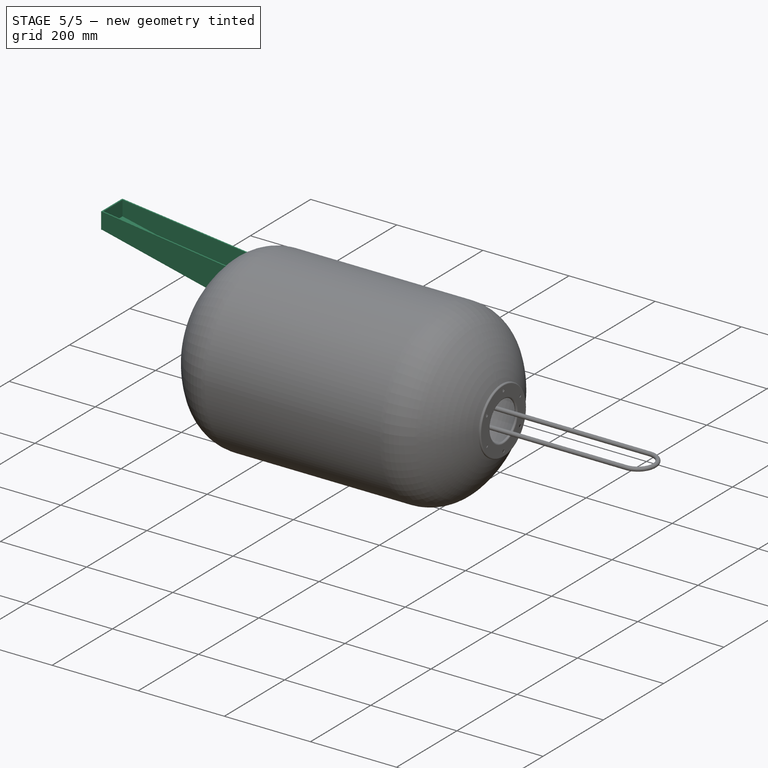
[diagram: stage 5 of 5 — iso view after this stage's code; geometry added in this stage tinted green]
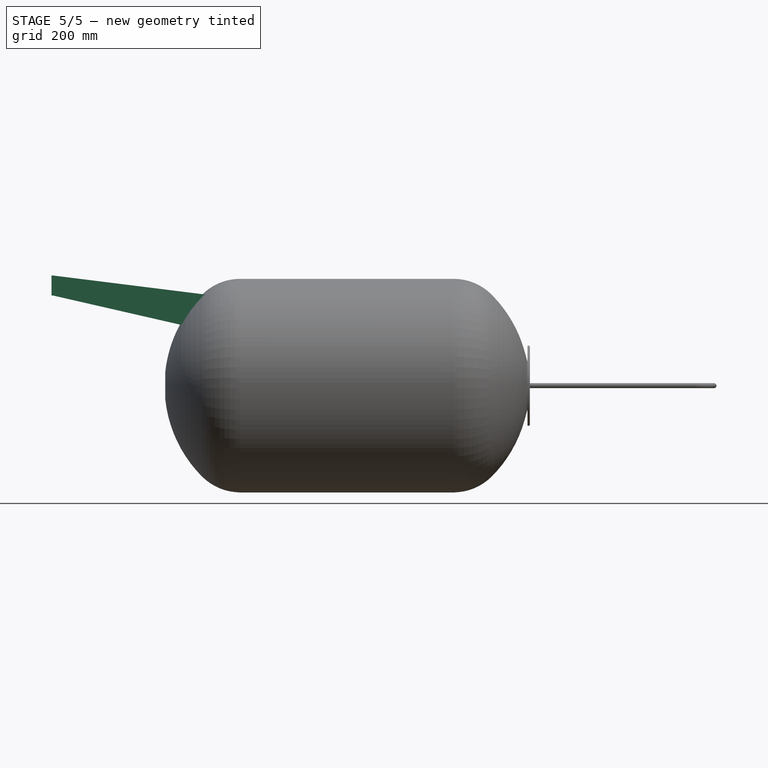
[diagram: stage 5 of 5 — front view after this stage's code; geometry added in this stage tinted green]
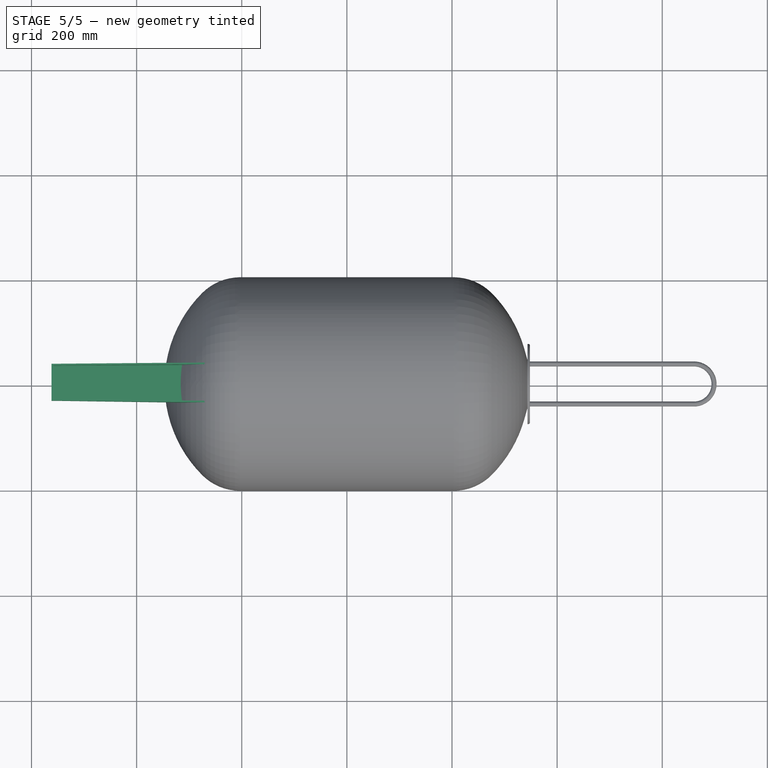
[diagram: stage 5 of 5 — top view after this stage's code; geometry added in this stage tinted green]
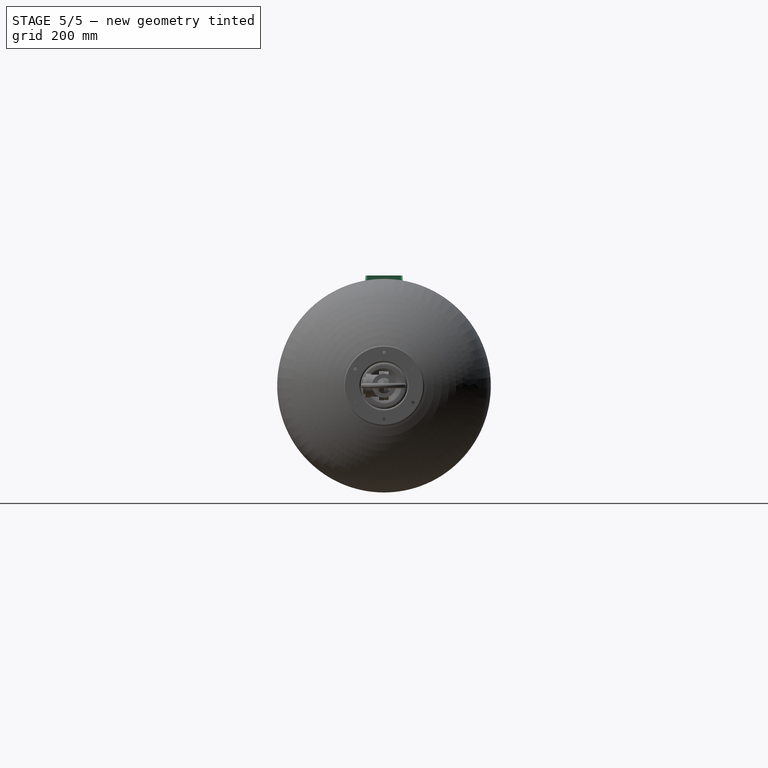
[diagram: stage 5 of 5 — right view after this stage's code; geometry added in this stage tinted green]
FEATURE [PartDesign::Body] Body011  label="flange-plate"
  Group = -> [Sketch035,Revolution006,Sketch036,Pocket003,PolarPattern003,Chamfer,Fillet,Fillet001,Fillet002]
  Origin = -> Origin018
  Placement = pos=(-320.04,0,0) rot=(0,0,1;0rad)
  Tip = -> Fillet002
FEATURE [Sketcher::SketchObject] Sketch110  label="tube-path-start"
  FullyConstrained = true
  MapMode = 5
  Support = -> [XY_Plane]
  sketch-geometry (13):
    g0: LineSegment StartX=25.4 StartY=6.604 StartZ=0 EndX=177.8 EndY=6.604 EndZ=0
    g1: ArcOfCircle CenterX=177.8 CenterY=32.004 CenterZ=0 NormalX=0 NormalY=0 NormalZ=1 AngleXU=0 Radius=25.4 StartAngle=4.71239 EndAngle=5.89339
    g2: ArcOfCircle CenterX=224.789 CenterY=12.7 CenterZ=0 NormalX=0 NormalY=0 NormalZ=1 AngleXU=0 Radius=25.4 StartAngle=1.5708 EndAngle=2.7518
    g3: LineSegment StartX=224.789 StartY=38.1 StartZ=0 EndX=660.4 EndY=38.1 EndZ=0
    g4: ArcOfCircle CenterX=660.4 CenterY=0 CenterZ=0 NormalX=0 NormalY=0 NormalZ=1 AngleXU=0 Radius=38.1 StartAngle=4.71239 EndAngle=7.85398
    g5: LineSegment StartX=660.4 StartY=-38.1 StartZ=0 EndX=224.789 EndY=-38.1 EndZ=0
    g6: ArcOfCircle CenterX=224.789 CenterY=-12.7 CenterZ=0 NormalX=0 NormalY=0 NormalZ=1 AngleXU=0 Radius=25.4 StartAngle=3.53139 EndAngle=4.71239
    g7: ArcOfCircle CenterX=177.8 CenterY=-32.004 CenterZ=0 NormalX=0 NormalY=0 NormalZ=1 AngleXU=0 Radius=25.4 StartAngle=0.389796 EndAngle=1.5708
    g8: LineSegment StartX=177.8 StartY=-6.604 StartZ=0 EndX=44.45 EndY=-6.604 EndZ=0
    g9: LineSegment StartX=177.8 StartY=6.604 StartZ=0 EndX=177.8 EndY=0 EndZ=0
    g10: LineSegment StartX=177.8 StartY=0 StartZ=0 EndX=177.8 EndY=-6.604 EndZ=0
    g11: ArcOfCircle CenterX=44.45 CenterY=-32.004 CenterZ=0 NormalX=0 NormalY=0 NormalZ=1 AngleXU=0 Radius=25.4 StartAngle=1.5708 EndAngle=2.61799
    g12: LineSegment StartX=22.453 StartY=-19.304 StartZ=0 EndX=9.75295 EndY=-41.301 EndZ=0
  constraints (36):
    c: Horizontal(g0)
    c: DistanceX(g0,g0) = 152.4
    c: Distance(g-1,g0) = 6.604
    c: Radius(g1) = 25.4
    c: Tangent(g1,g0) = -1.5708
    c: Tangent(g2,g1) = 1.5708
    c: Equal(g1,g2)
    c: Horizontal(g3)
    c: PointOnObject(g4,g-1)
    c: Horizontal(g5)
    c: Tangent(g4,g3) = 1.5708
    c: Tangent(g5,g4) = 1.5708
    c: Tangent(g6,g5) = 1.5708
    c: Tangent(g7,g6) = 1.5708
    c: Tangent(g3,g2) = 1.5708
    c: Equal(g1,g7)
    c: Equal(g1,g6)
    c: Distance(g-1,g3) = 38.1
    c: Coincident(g8,g7)
    c: Horizontal(g8)
    c: Coincident(g9,g0)
    c: PointOnObject(g9,g-1)
    c: Vertical(g9)
    c: Coincident(g10,g9)
    c: Coincident(g10,g7)
    c: Vertical(g10)
    c: Equal(g9,g10)
    c: DistanceX(g-1,g4) = 660.4
    c: Equal(g3,g5)
    c: Tangent(g11,g8) = -1.5708
    c: Tangent(g12,g11) = -1.5708
    c: Radius(g11) = 25.4
    c: DistanceX(g0,g8) = 19.05
    c: Distance(g12) = 25.4
    c: Angle(g12,g8) = 2.0944
    c: DistanceX(g-1,g0) = 25.4
FEATURE [Sketcher::SketchObject] Sketch111
  AttachmentOffset = pos=(0,101.6,-254) rot=(0,0,1;0rad)
  FullyConstrained = true
  MapMode = 5
  Placement = pos=(-254,7.9e-14,101.6) rot=(0.57735,0.57735,0.57735;2.0944rad)
  sketch-geometry (8):
    g0: LineSegment StartX=-38.1 StartY=69.85 StartZ=0 EndX=-38.1 EndY=0 EndZ=0
    g1: LineSegment StartX=-38.1 StartY=0 StartZ=0 EndX=38.1 EndY=0 EndZ=0
    g2: LineSegment StartX=38.1 StartY=0 StartZ=0 EndX=38.1 EndY=69.85 EndZ=0
    g3: LineSegment StartX=38.1 StartY=69.85 StartZ=0 EndX=34.925 EndY=69.85 EndZ=0
    g4: LineSegment StartX=34.925 StartY=69.85 StartZ=0 EndX=34.925 EndY=3.175 EndZ=0
    g5: LineSegment StartX=34.925 StartY=3.175 StartZ=0 EndX=-34.925 EndY=3.175 EndZ=0
    g6: LineSegment StartX=-34.925 StartY=3.175 StartZ=0 EndX=-34.925 EndY=69.85 EndZ=0
    g7: LineSegment StartX=-34.925 StartY=69.85 StartZ=0 EndX=-38.1 EndY=69.85 EndZ=0
  constraints (23):
    c: Vertical(g0)
    c: Coincident(g1,g0)
    c: Horizontal(g1)
    c: Coincident(g2,g1)
    c: Vertical(g2)
    c: Coincident(g3,g2)
    c: Horizontal(g3)
    c: Coincident(g4,g3)
    c: Vertical(g4)
    c: Coincident(g5,g4)
    c: Horizontal(g5)
    c: Coincident(g6,g5)
    c: Vertical(g6)
    c: Coincident(g7,g0)
    c: Horizontal(g7)
    c: Equal(g3,g7)
    c: DistanceX(g7,g7) = 3.175
    c: Equal(g6,g4)
    c: DistanceY(g0,g0) = 69.85
    c: Symmetric(g1,g1,g-1)
    c: DistanceY(g-1,g4) = 3.175
    c: Coincident(g7,g6)
    c: DistanceX(g1,g1) = 76.2
FEATURE [Sketcher::SketchObject] Sketch112
  AttachmentOffset = pos=(0,127,-558.8) rot=(0,0,1;0rad)
  FullyConstrained = true
  MapMode = 5
  Placement = pos=(-558.8,1.52e-13,127) rot=(0.57735,0.57735,0.57735;2.0944rad)
  sketch-geometry (9):
    g0: LineSegment StartX=-34.925 StartY=82.55 StartZ=0 EndX=-34.925 EndY=44.45 EndZ=0
    g1: LineSegment StartX=-34.925 StartY=44.45 StartZ=0 EndX=34.925 EndY=44.45 EndZ=0
    g2: LineSegment StartX=34.925 StartY=44.45 StartZ=0 EndX=34.925 EndY=82.55 EndZ=0
    g3: LineSegment StartX=34.925 StartY=82.55 StartZ=0 EndX=31.75 EndY=82.55 EndZ=0
    g4: LineSegment StartX=31.75 StartY=82.55 StartZ=0 EndX=31.75 EndY=47.625 EndZ=0
    g5: LineSegment StartX=31.75 StartY=47.625 StartZ=0 EndX=-31.75 EndY=47.625 EndZ=0
    g6: LineSegment StartX=-31.75 StartY=47.625 StartZ=0 EndX=-31.75 EndY=82.55 EndZ=0
    g7: LineSegment StartX=-34.925 StartY=82.55 StartZ=0 EndX=-31.75 EndY=82.55 EndZ=0
    g8: GeomPoint X=0 Y=44.45 Z=0
  constraints (25):
    c: Vertical(g0)
    c: Horizontal(g1)
    c: Coincident(g2,g1)
    c: Vertical(g2)
    c: Coincident(g3,g2)
    c: Horizontal(g3)
    c: Coincident(g4,g3)
    c: Vertical(g4)
    c: Coincident(g5,g4)
    c: Horizontal(g5)
    c: Coincident(g6,g5)
    c: Vertical(g6)
    c: Coincident(g7,g0)
    c: Horizontal(g7)
    c: Coincident(g7,g6)
    c: Equal(g7,g3)
    c: PointOnObject(g8,g-2)
    c: DistanceY(g-1,g8) = 44.45
    c: Symmetric(g1,g1,g8)
    c: Coincident(g0,g1)
    c: DistanceY(g8,g5) = 3.175
    c: DistanceX(g7,g7) = 3.175
    c: DistanceX(g1,g1) = 69.85
    c: DistanceY(g0,g0) = 38.1
    c: Equal(g0,g2)
FEATURE [PartDesign::AdditiveLoft] AdditiveLoft001
  Closed = false
  Placement = pos=(-254,7.9e-14,101.6) rot=(0.57735,0.57735,0.57735;2.0944rad)
  Profile = -> Sketch111
  Ruled = false
  Sections = -> [Sketch112]
FEATURE [Sketcher::SketchObject] Sketch113
  ExternalGeometry = -> [AdditiveLoft001]
  FullyConstrained = true
  MapMode = 5
  Placement = pos=(-558.8,7.9e-14,101.6) rot=(0.57735,0.57735,-0.57735;4.18879rad)
  Support = -> [AdditiveLoft001]
  sketch-geometry (4):
    g0: LineSegment StartX=-34.925 StartY=-69.85 StartZ=0 EndX=34.925 EndY=-69.85 EndZ=0
    g1: LineSegment StartX=34.925 StartY=-69.85 StartZ=0 EndX=34.925 EndY=-107.95 EndZ=0
    g2: LineSegment StartX=34.925 StartY=-107.95 StartZ=0 EndX=-34.925 EndY=-107.95 EndZ=0
    g3: LineSegment StartX=-34.925 StartY=-107.95 StartZ=0 EndX=-34.925 EndY=-69.85 EndZ=0
  constraints (10):
    c: Coincident(g0,g1)
    c: Coincident(g1,g2)
    c: Coincident(g2,g3)
    c: Coincident(g3,g0)
    c: Horizontal(g0)
    c: Horizontal(g2)
    c: Vertical(g1)
    c: Vertical(g3)
    c: Coincident(g0,g-4)
    c: Coincident(g1,g-5)
FEATURE [PartDesign::Pad] Pad024
  BaseFeature = -> AdditiveLoft001
  Direction = (-1,1e-16,-1e-16)
  Length = 3.175
  Length2 = 10
  Placement = pos=(-254,7.9e-14,101.6) rot=(0.57735,0.57735,0.57735;2.0944rad)
  Profile = -> Sketch113
  ReferenceAxis = -> Sketch113 [N_Axis]
  Type = 0
FEATURE [Sketcher::SketchObject] Sketch114
  FullyConstrained = true
  MapMode = 5
  Placement = pos=(0,0,0) rot=(1,0,0;1.5708rad)
  Support = -> [XZ_Plane043]
  sketch-geometry (5):
    g0: ArcOfCircle CenterX=-99.06 CenterY=0 CenterZ=0 NormalX=0 NormalY=0 NormalZ=1 AngleXU=0 Radius=246.38 StartAngle=2.42997 EndAngle=3.14159
    g1: ArcOfCircle CenterX=-193.314 CenterY=81.28 CenterZ=0 NormalX=0 NormalY=0 NormalZ=1 AngleXU=0 Radius=121.92 StartAngle=1.5708 EndAngle=2.42997
    g2: LineSegment StartX=-193.314 StartY=203.2 StartZ=0 EndX=0 EndY=203.2 EndZ=0
    g3: LineSegment StartX=-345.44 StartY=3.02e-14 StartZ=0 EndX=0 EndY=0 EndZ=0
    g4: LineSegment StartX=0 StartY=203.2 StartZ=0 EndX=0 EndY=0 EndZ=0
  constraints (14):
    c: PointOnObject(g0,g-1)
    c: PointOnObject(g2,g-2)
    c: Horizontal(g2)
    c: Tangent(g1,g0) = -1.5708
    c: Tangent(g2,g1) = 1.5708
    c: Radius(g0) = 246.38
    c: Coincident(g3,g0)
    c: Coincident(g4,g2)
    c: Coincident(g4,g-1)
    c: Coincident(g3,g4)
    c: DistanceY(g4,g4) = 203.2
    c: DistanceX(g3,g3) = 345.44
    c: Perpendicular(g0,g3)
    c: Radius(g1) = 121.92
FEATURE [PartDesign::Groove] Groove
  Angle = 360
  Axis = (1,0,0)
  Base = (0,0,0)
  BaseFeature = -> Pad024
  Placement = pos=(-254,7.9e-14,101.6) rot=(0.57735,0.57735,0.57735;2.0944rad)
  Profile = -> Sketch114
  ReferenceAxis = -> Sketch114 [H_Axis]
  Reversed = true
FEATURE [PartDesign::Body] Body034  label="leg-001"
  Group = -> [Sketch111,Sketch112,AdditiveLoft001,Sketch113,Pad024,Sketch114,Groove]
  Origin = -> Origin043
  Tip = -> Groove
FEATURE [Sketcher::SketchObject] Sketch115
  AttachmentOffset = pos=(0,101.6,-254) rot=(0,0,1;0rad)
  FullyConstrained = true
  MapMode = 5
  Placement = pos=(-254,7.9e-14,101.6) rot=(0.57735,0.57735,0.57735;2.0944rad)
  sketch-geometry (8):
    g0: LineSegment StartX=-38.1 StartY=69.85 StartZ=0 EndX=-38.1 EndY=0 EndZ=0
    g1: LineSegment StartX=-38.1 StartY=0 StartZ=0 EndX=38.1 EndY=0 EndZ=0
    g2: LineSegment StartX=38.1 StartY=0 StartZ=0 EndX=38.1 EndY=69.85 EndZ=0
    g3: LineSegment StartX=38.1 StartY=69.85 StartZ=0 EndX=34.925 EndY=69.85 EndZ=0
    g4: LineSegment StartX=34.925 StartY=69.85 StartZ=0 EndX=34.925 EndY=3.175 EndZ=0
    g5: LineSegment StartX=34.925 StartY=3.175 StartZ=0 EndX=-34.925 EndY=3.175 EndZ=0
    g6: LineSegment StartX=-34.925 StartY=3.175 StartZ=0 EndX=-34.925 EndY=69.85 EndZ=0
    g7: LineSegment StartX=-34.925 StartY=69.85 StartZ=0 EndX=-38.1 EndY=69.85 EndZ=0
  constraints (23):
    c: Vertical(g0)
    c: Coincident(g1,g0)
    c: Horizontal(g1)
    c: Coincident(g2,g1)
    c: Vertical(g2)
    c: Coincident(g3,g2)
    c: Horizontal(g3)
    c: Coincident(g4,g3)
    c: Vertical(g4)
    c: Coincident(g5,g4)
    c: Horizontal(g5)
    c: Coincident(g6,g5)
    c: Vertical(g6)
    c: Coincident(g7,g0)
    c: Horizontal(g7)
    c: Equal(g3,g7)
    c: DistanceX(g7,g7) = 3.175
    c: Equal(g6,g4)
    c: DistanceY(g0,g0) = 69.85
    c: Symmetric(g1,g1,g-1)
    c: DistanceY(g-1,g4) = 3.175
    c: Coincident(g7,g6)
    c: DistanceX(g1,g1) = 76.2
FEATURE [Sketcher::SketchObject] Sketch116
  AttachmentOffset = pos=(0,127,-558.8) rot=(0,0,1;0rad)
  FullyConstrained = true
  MapMode = 5
  Placement = pos=(-558.8,1.52e-13,127) rot=(0.57735,0.57735,0.57735;2.0944rad)
  sketch-geometry (9):
    g0: LineSegment StartX=-34.925 StartY=82.55 StartZ=0 EndX=-34.925 EndY=44.45 EndZ=0
    g1: LineSegment StartX=-34.925 StartY=44.45 StartZ=0 EndX=34.925 EndY=44.45 EndZ=0
    g2: LineSegment StartX=34.925 StartY=44.45 StartZ=0 EndX=34.925 EndY=82.55 EndZ=0
    g3: LineSegment StartX=34.925 StartY=82.55 StartZ=0 EndX=31.75 EndY=82.55 EndZ=0
    g4: LineSegment StartX=31.75 StartY=82.55 StartZ=0 EndX=31.75 EndY=47.625 EndZ=0
    g5: LineSegment StartX=31.75 StartY=47.625 StartZ=0 EndX=-31.75 EndY=47.625 EndZ=0
    g6: LineSegment StartX=-31.75 StartY=47.625 StartZ=0 EndX=-31.75 EndY=82.55 EndZ=0
    g7: LineSegment StartX=-34.925 StartY=82.55 StartZ=0 EndX=-31.75 EndY=82.55 EndZ=0
    g8: GeomPoint X=0 Y=44.45 Z=0
  constraints (25):
    c: Vertical(g0)
    c: Horizontal(g1)
    c: Coincident(g2,g1)
    c: Vertical(g2)
    c: Coincident(g3,g2)
    c: Horizontal(g3)
    c: Coincident(g4,g3)
    c: Vertical(g4)
    c: Coincident(g5,g4)
    c: Horizontal(g5)
    c: Coincident(g6,g5)
    c: Vertical(g6)
    c: Coincident(g7,g0)
    c: Horizontal(g7)
    c: Coincident(g7,g6)
    c: Equal(g7,g3)
    c: PointOnObject(g8,g-2)
    c: DistanceY(g-1,g8) = 44.45
    c: Symmetric(g1,g1,g8)
    c: Coincident(g0,g1)
    c: DistanceY(g8,g5) = 3.175
    c: DistanceX(g7,g7) = 3.175
    c: DistanceX(g1,g1) = 69.85
    c: DistanceY(g0,g0) = 38.1
    c: Equal(g0,g2)
FEATURE [PartDesign::AdditiveLoft] AdditiveLoft002
  Closed = false
  Placement = pos=(-254,7.9e-14,101.6) rot=(0.57735,0.57735,0.57735;2.0944rad)
  Profile = -> Sketch115
  Ruled = false
  Sections = -> [Sketch116]
FEATURE [Sketcher::SketchObject] Sketch117
  ExternalGeometry = -> [AdditiveLoft002]
  FullyConstrained = true
  MapMode = 5
  Placement = pos=(-558.8,7.9e-14,101.6) rot=(0.57735,0.57735,-0.57735;4.18879rad)
  Support = -> [AdditiveLoft002]
  sketch-geometry (4):
    g0: LineSegment StartX=-34.925 StartY=-69.85 StartZ=0 EndX=34.925 EndY=-69.85 EndZ=0
    g1: LineSegment StartX=34.925 StartY=-69.85 StartZ=0 EndX=34.925 EndY=-107.95 EndZ=0
    g2: LineSegment StartX=34.925 StartY=-107.95 StartZ=0 EndX=-34.925 EndY=-107.95 EndZ=0
    g3: LineSegment StartX=-34.925 StartY=-107.95 StartZ=0 EndX=-34.925 EndY=-69.85 EndZ=0
  constraints (10):
    c: Coincident(g0,g1)
    c: Coincident(g1,g2)
    c: Coincident(g2,g3)
    c: Coincident(g3,g0)
    c: Horizontal(g0)
    c: Horizontal(g2)
    c: Vertical(g1)
    c: Vertical(g3)
    c: Coincident(g0,g-4)
    c: Coincident(g1,g-5)
FEATURE [PartDesign::Pad] Pad025
  BaseFeature = -> AdditiveLoft002
  Direction = (-1,1e-16,-1e-16)
  Length = 3.175
  Length2 = 10
  Placement = pos=(-254,7.9e-14,101.6) rot=(0.57735,0.57735,0.57735;2.0944rad)
  Profile = -> Sketch117
  ReferenceAxis = -> Sketch117 [N_Axis]
  Type = 0
FEATURE [Sketcher::SketchObject] Sketch118
  FullyConstrained = true
  MapMode = 5
  Placement = pos=(0,0,0) rot=(1,0,0;1.5708rad)
  Support = -> [XZ_Plane043]
  sketch-geometry (5):
    g0: ArcOfCircle CenterX=-99.06 CenterY=0 CenterZ=0 NormalX=0 NormalY=0 NormalZ=1 AngleXU=0 Radius=246.38 StartAngle=2.42997 EndAngle=3.14159
    g1: ArcOfCircle CenterX=-193.314 CenterY=81.28 CenterZ=0 NormalX=0 NormalY=0 NormalZ=1 AngleXU=0 Radius=121.92 StartAngle=1.5708 EndAngle=2.42997
    g2: LineSegment StartX=-193.314 StartY=203.2 StartZ=0 EndX=0 EndY=203.2 EndZ=0
    g3: LineSegment StartX=-345.44 StartY=3.02e-14 StartZ=0 EndX=0 EndY=0 EndZ=0
    g4: LineSegment StartX=0 StartY=203.2 StartZ=0 EndX=0 EndY=0 EndZ=0
  constraints (14):
    c: PointOnObject(g0,g-1)
    c: PointOnObject(g2,g-2)
    c: Horizontal(g2)
    c: Tangent(g1,g0) = -1.5708
    c: Tangent(g2,g1) = 1.5708
    c: Radius(g0) = 246.38
    c: Coincident(g3,g0)
    c: Coincident(g4,g2)
    c: Coincident(g4,g-1)
    c: Coincident(g3,g4)
    c: DistanceY(g4,g4) = 203.2
    c: DistanceX(g3,g3) = 345.44
    c: Perpendicular(g0,g3)
    c: Radius(g1) = 121.92
FEATURE [PartDesign::Groove] Groove004
  Angle = 360
  Axis = (1,0,0)
  Base = (0,0,0)
  BaseFeature = -> Pad025
  Placement = pos=(-254,7.9e-14,101.6) rot=(0.57735,0.57735,0.57735;2.0944rad)
  Profile = -> Sketch118
  ReferenceAxis = -> Sketch118 [H_Axis]
  Reversed = true
FEATURE [PartDesign::Body] Body035  label="leg-002"
  Group = -> [Sketch115,Sketch116,AdditiveLoft002,Sketch117,Pad025,Sketch118,Groove004]
  Origin = -> Origin044
  Placement = pos=(0,0,0) rot=(1,0,0;2.0944rad)
  Tip = -> Groove004
FEATURE [Sketcher::SketchObject] Sketch119
  AttachmentOffset = pos=(0,101.6,-254) rot=(0,0,1;0rad)
  FullyConstrained = true
  MapMode = 5
  Placement = pos=(-254,7.9e-14,101.6) rot=(0.57735,0.57735,0.57735;2.0944rad)
  sketch-geometry (8):
    g0: LineSegment StartX=-38.1 StartY=69.85 StartZ=0 EndX=-38.1 EndY=0 EndZ=0
    g1: LineSegment StartX=-38.1 StartY=0 StartZ=0 EndX=38.1 EndY=0 EndZ=0
    g2: LineSegment StartX=38.1 StartY=0 StartZ=0 EndX=38.1 EndY=69.85 EndZ=0
    g3: LineSegment StartX=38.1 StartY=69.85 StartZ=0 EndX=34.925 EndY=69.85 EndZ=0
    g4: LineSegment StartX=34.925 StartY=69.85 StartZ=0 EndX=34.925 EndY=3.175 EndZ=0
    g5: LineSegment StartX=34.925 StartY=3.175 StartZ=0 EndX=-34.925 EndY=3.175 EndZ=0
    g6: LineSegment StartX=-34.925 StartY=3.175 StartZ=0 EndX=-34.925 EndY=69.85 EndZ=0
    g7: LineSegment StartX=-34.925 StartY=69.85 StartZ=0 EndX=-38.1 EndY=69.85 EndZ=0
  constraints (23):
    c: Vertical(g0)
    c: Coincident(g1,g0)
    c: Horizontal(g1)
    c: Coincident(g2,g1)
    c: Vertical(g2)
    c: Coincident(g3,g2)
    c: Horizontal(g3)
    c: Coincident(g4,g3)
    c: Vertical(g4)
    c: Coincident(g5,g4)
    c: Horizontal(g5)
    c: Coincident(g6,g5)
    c: Vertical(g6)
    c: Coincident(g7,g0)
    c: Horizontal(g7)
    c: Equal(g3,g7)
    c: DistanceX(g7,g7) = 3.175
    c: Equal(g6,g4)
    c: DistanceY(g0,g0) = 69.85
    c: Symmetric(g1,g1,g-1)
    c: DistanceY(g-1,g4) = 3.175
    c: Coincident(g7,g6)
    c: DistanceX(g1,g1) = 76.2
FEATURE [Sketcher::SketchObject] Sketch120
  AttachmentOffset = pos=(0,127,-558.8) rot=(0,0,1;0rad)
  FullyConstrained = true
  MapMode = 5
  Placement = pos=(-558.8,1.52e-13,127) rot=(0.57735,0.57735,0.57735;2.0944rad)
  sketch-geometry (9):
    g0: LineSegment StartX=-34.925 StartY=82.55 StartZ=0 EndX=-34.925 EndY=44.45 EndZ=0
    g1: LineSegment StartX=-34.925 StartY=44.45 StartZ=0 EndX=34.925 EndY=44.45 EndZ=0
    g2: LineSegment StartX=34.925 StartY=44.45 StartZ=0 EndX=34.925 EndY=82.55 EndZ=0
    g3: LineSegment StartX=34.925 StartY=82.55 StartZ=0 EndX=31.75 EndY=82.55 EndZ=0
    g4: LineSegment StartX=31.75 StartY=82.55 StartZ=0 EndX=31.75 EndY=47.625 EndZ=0
    g5: LineSegment StartX=31.75 StartY=47.625 StartZ=0 EndX=-31.75 EndY=47.625 EndZ=0
    g6: LineSegment StartX=-31.75 StartY=47.625 StartZ=0 EndX=-31.75 EndY=82.55 EndZ=0
    g7: LineSegment StartX=-34.925 StartY=82.55 StartZ=0 EndX=-31.75 EndY=82.55 EndZ=0
    g8: GeomPoint X=0 Y=44.45 Z=0
  constraints (25):
    c: Vertical(g0)
    c: Horizontal(g1)
    c: Coincident(g2,g1)
    c: Vertical(g2)
    c: Coincident(g3,g2)
    c: Horizontal(g3)
    c: Coincident(g4,g3)
    c: Vertical(g4)
    c: Coincident(g5,g4)
    c: Horizontal(g5)
    c: Coincident(g6,g5)
    c: Vertical(g6)
    c: Coincident(g7,g0)
    c: Horizontal(g7)
    c: Coincident(g7,g6)
    c: Equal(g7,g3)
    c: PointOnObject(g8,g-2)
    c: DistanceY(g-1,g8) = 44.45
    c: Symmetric(g1,g1,g8)
    c: Coincident(g0,g1)
    c: DistanceY(g8,g5) = 3.175
    c: DistanceX(g7,g7) = 3.175
    c: DistanceX(g1,g1) = 69.85
    c: DistanceY(g0,g0) = 38.1
    c: Equal(g0,g2)
FEATURE [PartDesign::AdditiveLoft] AdditiveLoft003
  Closed = false
  Placement = pos=(-254,7.9e-14,101.6) rot=(0.57735,0.57735,0.57735;2.0944rad)
  Profile = -> Sketch119
  Ruled = false
  Sections = -> [Sketch120]
FEATURE [Sketcher::SketchObject] Sketch121
  ExternalGeometry = -> [AdditiveLoft003]
  FullyConstrained = true
  MapMode = 5
  Placement = pos=(-558.8,7.9e-14,101.6) rot=(0.57735,0.57735,-0.57735;4.18879rad)
  Support = -> [AdditiveLoft003]
  sketch-geometry (4):
    g0: LineSegment StartX=-34.925 StartY=-69.85 StartZ=0 EndX=34.925 EndY=-69.85 EndZ=0
    g1: LineSegment StartX=34.925 StartY=-69.85 StartZ=0 EndX=34.925 EndY=-107.95 EndZ=0
    g2: LineSegment StartX=34.925 StartY=-107.95 StartZ=0 EndX=-34.925 EndY=-107.95 EndZ=0
    g3: LineSegment StartX=-34.925 StartY=-107.95 StartZ=0 EndX=-34.925 EndY=-69.85 EndZ=0
  constraints (10):
    c: Coincident(g0,g1)
    c: Coincident(g1,g2)
    c: Coincident(g2,g3)
    c: Coincident(g3,g0)
    c: Horizontal(g0)
    c: Horizontal(g2)
    c: Vertical(g1)
    c: Vertical(g3)
    c: Coincident(g0,g-4)
    c: Coincident(g1,g-5)
FEATURE [PartDesign::Pad] Pad026
  BaseFeature = -> AdditiveLoft003
  Direction = (-1,1e-16,-1e-16)
  Length = 3.175
  Length2 = 10
  Placement = pos=(-254,7.9e-14,101.6) rot=(0.57735,0.57735,0.57735;2.0944rad)
  Profile = -> Sketch121
  ReferenceAxis = -> Sketch121 [N_Axis]
  Type = 0
FEATURE [Sketcher::SketchObject] Sketch122
  FullyConstrained = true
  MapMode = 5
  Placement = pos=(0,0,0) rot=(1,0,0;1.5708rad)
  Support = -> [XZ_Plane043]
  sketch-geometry (5):
    g0: ArcOfCircle CenterX=-99.06 CenterY=0 CenterZ=0 NormalX=0 NormalY=0 NormalZ=1 AngleXU=0 Radius=246.38 StartAngle=2.42997 EndAngle=3.14159
    g1: ArcOfCircle CenterX=-193.314 CenterY=81.28 CenterZ=0 NormalX=0 NormalY=0 NormalZ=1 AngleXU=0 Radius=121.92 StartAngle=1.5708 EndAngle=2.42997
    g2: LineSegment StartX=-193.314 StartY=203.2 StartZ=0 EndX=0 EndY=203.2 EndZ=0
    g3: LineSegment StartX=-345.44 StartY=3.02e-14 StartZ=0 EndX=0 EndY=0 EndZ=0
    g4: LineSegment StartX=0 StartY=203.2 StartZ=0 EndX=0 EndY=0 EndZ=0
  constraints (14):
    c: PointOnObject(g0,g-1)
    c: PointOnObject(g2,g-2)
    c: Horizontal(g2)
    c: Tangent(g1,g0) = -1.5708
    c: Tangent(g2,g1) = 1.5708
    c: Radius(g0) = 246.38
    c: Coincident(g3,g0)
    c: Coincident(g4,g2)
    c: Coincident(g4,g-1)
    c: Coincident(g3,g4)
    c: DistanceY(g4,g4) = 203.2
    c: DistanceX(g3,g3) = 345.44
    c: Perpendicular(g0,g3)
    c: Radius(g1) = 121.92
FEATURE [PartDesign::Groove] Groove005
  Angle = 360
  Axis = (1,0,0)
  Base = (0,0,0)
  BaseFeature = -> Pad026
  Placement = pos=(-254,7.9e-14,101.6) rot=(0.57735,0.57735,0.57735;2.0944rad)
  Profile = -> Sketch122
  ReferenceAxis = -> Sketch122 [H_Axis]
  Reversed = true
FEATURE [PartDesign::Chamfer] Chamfer006
  Angle = 45
  Base = -> Fillet011 [Face5,Face18,Face2,Face17]
  BaseFeature = -> Fillet011
  ChamferType = 0
  FlipDirection = false
  Placement = pos=(0,0,0) rot=(1,0,0;1.5708rad)
  Size = 0.3175
  Size2 = 1
  SupportTransform = false
  UseAllEdges = false
FEATURE [PartDesign::Chamfer] Chamfer008
  Angle = 45
  Base = -> Pad029 [Face4,Face3]
  BaseFeature = -> Pad029
  ChamferType = 0
  FlipDirection = false
  Placement = pos=(0,0,0) rot=(1,0,0;1.5708rad)
  Size = 0.3175
  Size2 = 1
  SupportTransform = false
  UseAllEdges = false
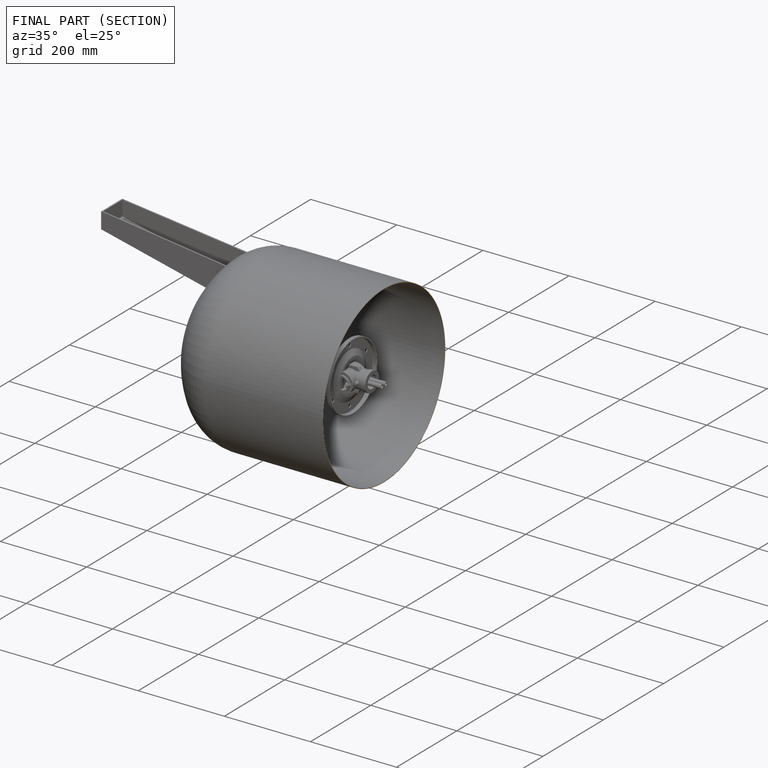
[diagram: finished part — half-section view (interior)]
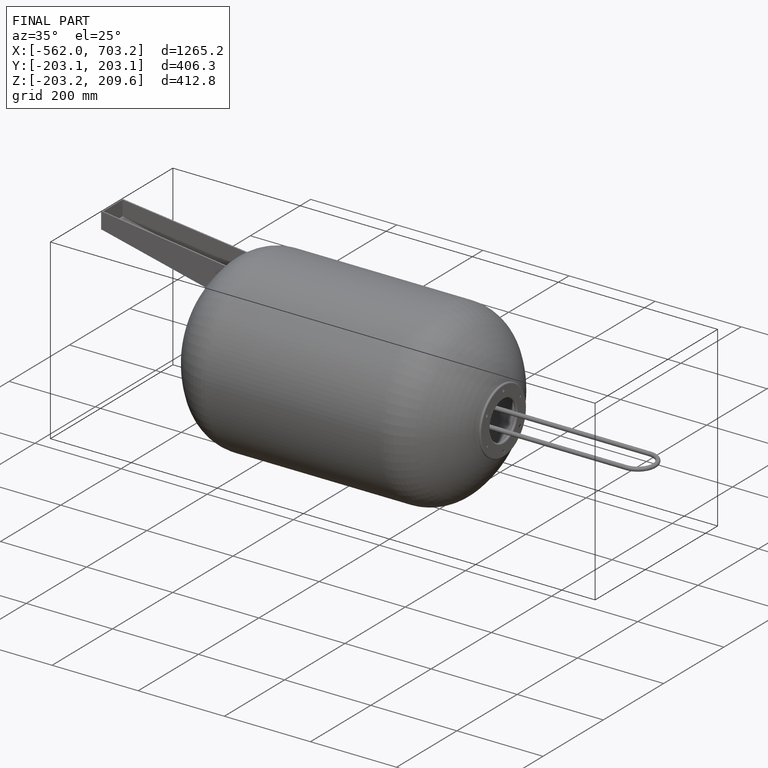
[diagram: finished part — iso view with bounding-box wireframe]
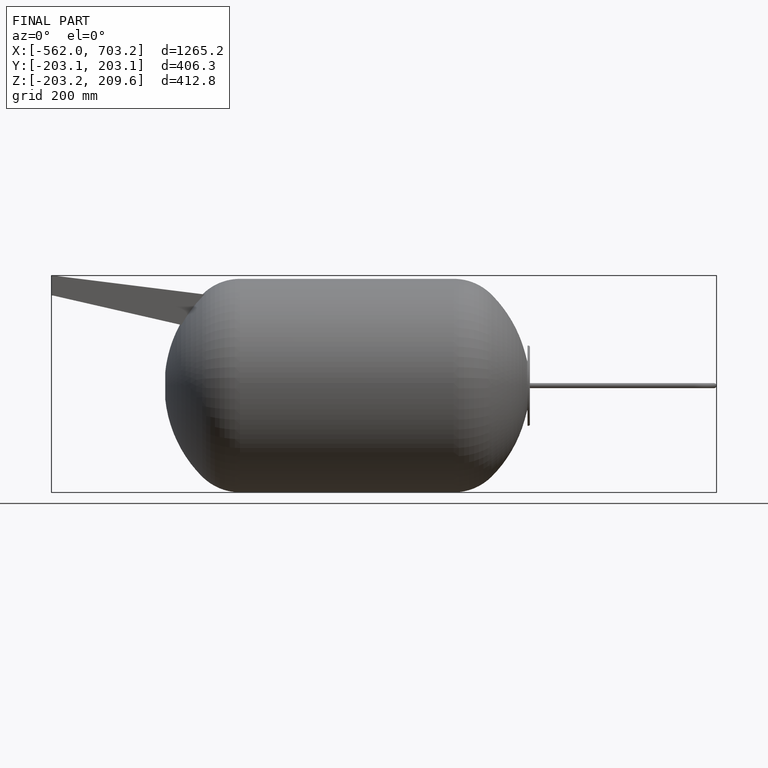
[diagram: finished part — front view with bounding-box wireframe]
